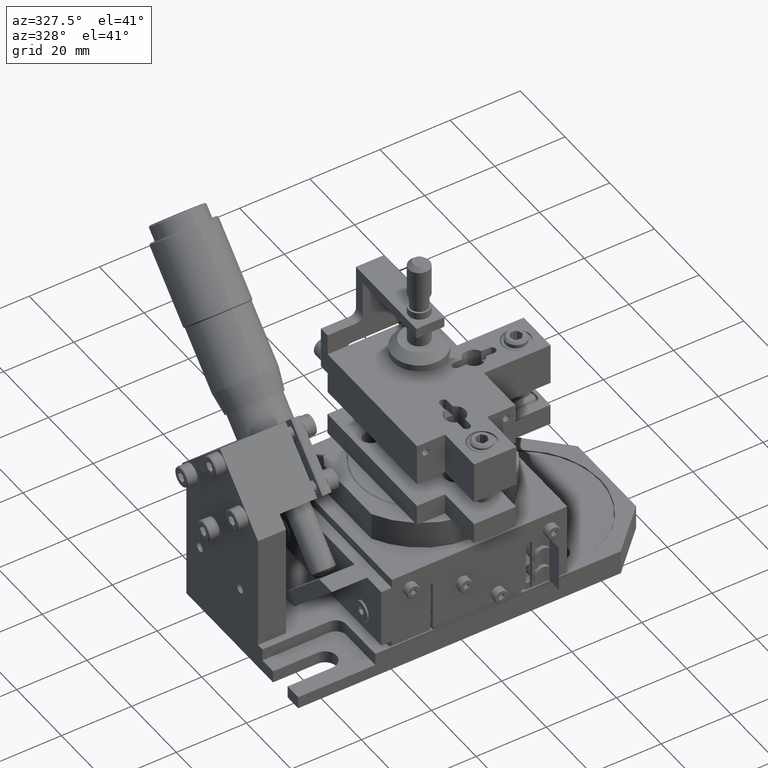
[diagram: clean part render]
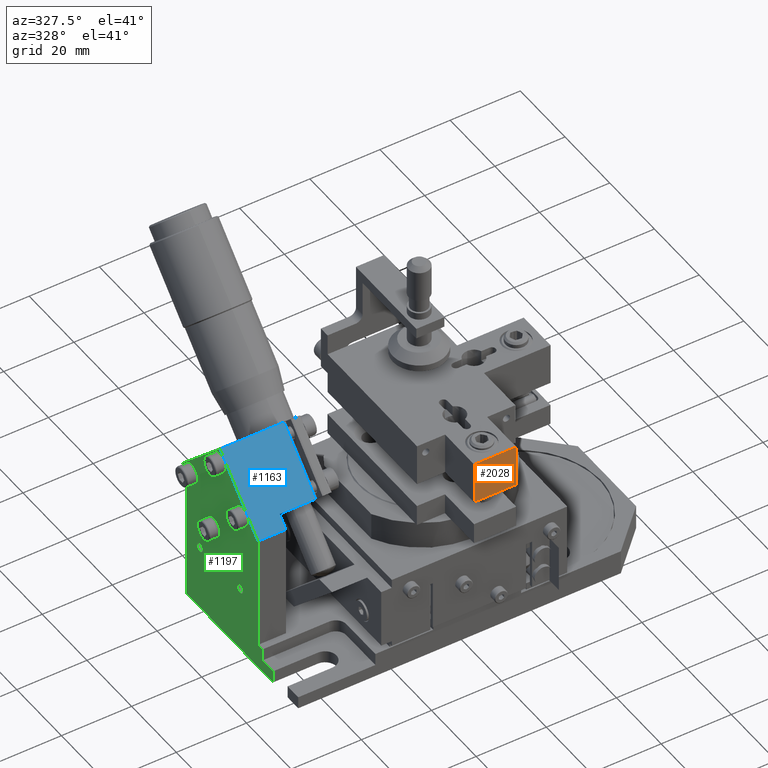
[diagram: same view with three faces highlighted in distinct colors, each labeled with its STEP entity id]
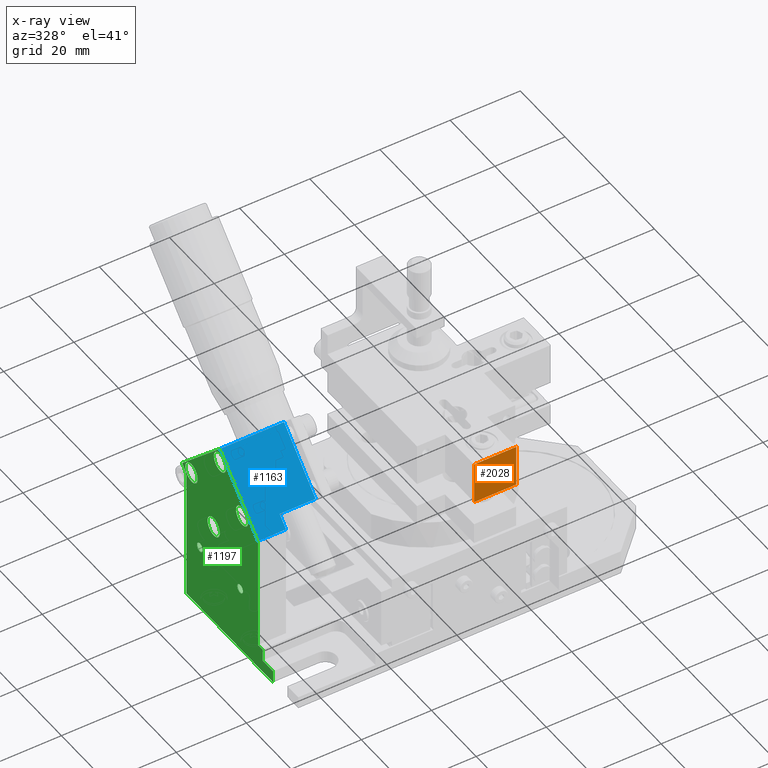
[diagram: x-ray of the same camera — body ghosted, the three highlighted faces saturated]
A machine part, auxiliary view with three faces highlighted in distinct colors.
The next image is the same camera in x-ray (body ghosted, the three faces saturated) — at least one of them is partly hidden behind the body in this view.
Their STEP definitions:

[orange] entity #2028 — the highlighted face is a freeform B-spline surface patch.
#2028=ADVANCED_FACE('',(#3232),#43042,.T.);
#3232=FACE_OUTER_BOUND('',#4586,.T.);
#4586=EDGE_LOOP('',(#10637,#10638,#10639,#10640));
#10637=ORIENTED_EDGE('',*,*,#37594,.T.);
#10638=ORIENTED_EDGE('',*,*,#37595,.T.);
#10639=ORIENTED_EDGE('',*,*,#37536,.F.);
#10640=ORIENTED_EDGE('',*,*,#37593,.F.);
#16912=PCURVE('',#43033,#23315);
#17037=PCURVE('',#43041,#23440);
#17040=PCURVE('',#43042,#23443);
#17041=PCURVE('',#43042,#23444);
#17042=PCURVE('',#43042,#23445);
#17043=PCURVE('',#43042,#23446);
#17047=PCURVE('',#43043,#23450);
#17110=PCURVE('',#43052,#23513);
#23315=DEFINITIONAL_REPRESENTATION('',(#30482),#93713);
#23440=DEFINITIONAL_REPRESENTATION('',(#30623),#93713);
#23443=DEFINITIONAL_REPRESENTATION('',(#30627),#93713);
#23444=DEFINITIONAL_REPRESENTATION('',(#30629),#93713);
#23445=DEFINITIONAL_REPRESENTATION('',(#30630),#93713);
#23446=DEFINITIONAL_REPRESENTATION('',(#30631),#93713);
#23450=DEFINITIONAL_REPRESENTATION('',(#30637),#93713);
#23513=DEFINITIONAL_REPRESENTATION('',(#30710),#93713);
#30481=B_SPLINE_CURVE_WITH_KNOTS('',1,(#90628,#90629),.UNSPECIFIED.,.F.,
 .F.,(2,2),(-12.0000000000004,0.),.UNSPECIFIED.);
#30482=B_SPLINE_CURVE_WITH_KNOTS('',1,(#90630,#90631),.UNSPECIFIED.,.F.,
 .F.,(2,2),(-12.0000000000004,0.),.UNSPECIFIED.);
#30622=B_SPLINE_CURVE_WITH_KNOTS('',1,(#91105,#91106),.UNSPECIFIED.,.F.,
 .F.,(2,2),(-12.,0.),.UNSPECIFIED.);
#30623=B_SPLINE_CURVE_WITH_KNOTS('',1,(#91107,#91108),.UNSPECIFIED.,.F.,
 .F.,(2,2),(-12.,0.),.UNSPECIFIED.);
#30626=B_SPLINE_CURVE_WITH_KNOTS('',1,(#91113,#91114),.UNSPECIFIED.,.F.,
 .F.,(2,2),(0.,12.0000000000004),.UNSPECIFIED.);
#30627=B_SPLINE_CURVE_WITH_KNOTS('',1,(#91115,#91116),.UNSPECIFIED.,.F.,
 .F.,(2,2),(0.,12.0000000000004),.UNSPECIFIED.);
#30628=B_SPLINE_CURVE_WITH_KNOTS('',1,(#91117,#91118),.UNSPECIFIED.,.F.,
 .F.,(2,2),(-12.0000000000001,0.),.UNSPECIFIED.);
#30629=B_SPLINE_CURVE_WITH_KNOTS('',1,(#91119,#91120),.UNSPECIFIED.,.F.,
 .F.,(2,2),(-12.0000000000001,0.),.UNSPECIFIED.);
#30630=B_SPLINE_CURVE_WITH_KNOTS('',1,(#91121,#91122),.UNSPECIFIED.,.F.,
 .F.,(2,2),(-12.0000000000004,0.),.UNSPECIFIED.);
#30631=B_SPLINE_CURVE_WITH_KNOTS('',1,(#91123,#91124),.UNSPECIFIED.,.F.,
 .F.,(2,2),(-12.,0.),.UNSPECIFIED.);
#30637=B_SPLINE_CURVE_WITH_KNOTS('',1,(#91135,#91136),.UNSPECIFIED.,.F.,
 .F.,(2,2),(-12.0000000000001,0.),.UNSPECIFIED.);
#30710=B_SPLINE_CURVE_WITH_KNOTS('',1,(#91298,#91299),.UNSPECIFIED.,.F.,
 .F.,(2,2),(0.,12.0000000000004),.UNSPECIFIED.);
#34196=SURFACE_CURVE('',#30481,(#16912,#17042),.PCURVE_S1.);
#34253=SURFACE_CURVE('',#30622,(#17037,#17043),.PCURVE_S1.);
#34254=SURFACE_CURVE('',#30626,(#17040,#17110),.PCURVE_S1.);
#34255=SURFACE_CURVE('',#30628,(#17041,#17047),.PCURVE_S1.);
#37536=EDGE_CURVE('',#42406,#42407,#34196,.T.);
#37593=EDGE_CURVE('',#42445,#42406,#34253,.T.);
#37594=EDGE_CURVE('',#42445,#42446,#34254,.T.);
#37595=EDGE_CURVE('',#42446,#42407,#34255,.T.);
#42406=VERTEX_POINT('',#87221);
#42407=VERTEX_POINT('',#87222);
#42445=VERTEX_POINT('',#87260);
#42446=VERTEX_POINT('',#87261);
#43033=B_SPLINE_SURFACE_WITH_KNOTS('',1,1,((#86317,#86318),(#86319,#86320)),
 .UNSPECIFIED.,.F.,.F.,.F.,(2,2),(2,2),(-29.6508674166048,34.202720252592),
(-24.4352821339673,32.2207320696255),.UNSPECIFIED.);
#43041=B_SPLINE_SURFACE_WITH_KNOTS('',1,1,((#86529,#86530),(#86531,#86532)),
 .UNSPECIFIED.,.F.,.F.,.F.,(2,2),(2,2),(-1.32000000000003,13.32),(-1.42002021941653,
14.4200202194166),.UNSPECIFIED.);
#43042=B_SPLINE_SURFACE_WITH_KNOTS('',1,1,((#86533,#86534),(#86535,#86536)),
 .UNSPECIFIED.,.F.,.F.,.F.,(2,2),(2,2),(-1.32000000000003,13.3200000000001),
(-1.32002021941656,13.320020219417),.UNSPECIFIED.);
#43043=B_SPLINE_SURFACE_WITH_KNOTS('',1,1,((#86537,#86538),(#86539,#86540)),
 .UNSPECIFIED.,.F.,.F.,.F.,(2,2),(2,2),(-13.3200000000001,1.32000000000001),
(-14.4200202194166,1.42002021941655),.UNSPECIFIED.);
#43052=B_SPLINE_SURFACE_WITH_KNOTS('',1,1,((#86573,#86574),(#86575,#86576)),
 .UNSPECIFIED.,.F.,.F.,.F.,(2,2),(2,2),(-24.4352821339673,32.2207320696255),
(-29.6508674166047,34.2027202525921),.UNSPECIFIED.);
#86317=CARTESIAN_POINT('',(201.540010300063,33.5984791032046,-58.4147428953869));
#86318=CARTESIAN_POINT('',(258.19602369927,33.5984791032047,-58.4051958280862));
#86319=CARTESIAN_POINT('',(201.550770225685,33.5984791032047,-122.26832965801));
#86320=CARTESIAN_POINT('',(258.206783624892,33.5984791032048,-122.258782590709));
#86529=CARTESIAN_POINT('',(214.377707647935,32.2784791032047,-102.418427445477));
#86530=CARTESIAN_POINT('',(214.380376842622,32.2784791032047,-118.258467659419));
#86531=CARTESIAN_POINT('',(214.377707647935,46.9184791032047,-102.418427445477));
#86532=CARTESIAN_POINT('',(214.380376842622,46.9184791032047,-118.258467659419));
#86533=CARTESIAN_POINT('',(213.060117355283,32.2784791032047,-116.838669895893));
#86534=CARTESIAN_POINT('',(227.700157586261,32.2784791032047,-116.836202912408));
#86535=CARTESIAN_POINT('',(213.060117355283,46.9184791032048,-116.838669895893));
#86536=CARTESIAN_POINT('',(227.700157586261,46.9184791032048,-116.836202912408));
#86537=CARTESIAN_POINT('',(226.377707477562,46.9184791032048,-102.416405333452));
#86538=CARTESIAN_POINT('',(226.380376672249,46.9184791032048,-118.256445547394));
#86539=CARTESIAN_POINT('',(226.377707477562,32.2784791032047,-102.416405333453));
#86540=CARTESIAN_POINT('',(226.380376672249,32.2784791032047,-118.256445547394));
#86573=CARTESIAN_POINT('',(201.540010300063,45.5984791032046,-58.4147428953869));
#86574=CARTESIAN_POINT('',(201.550770225685,45.5984791032047,-122.26832965801));
#86575=CARTESIAN_POINT('',(258.19602369927,45.5984791032047,-58.4051958280862));
#86576=CARTESIAN_POINT('',(258.206783624892,45.5984791032048,-122.258782590709));
#87221=CARTESIAN_POINT('',(214.380137555958,33.5984791032047,-116.838447460163));
#87222=CARTESIAN_POINT('',(226.380137385586,33.5984791032047,-116.836425348138));
#87260=CARTESIAN_POINT('',(214.380137555958,45.5984791032047,-116.838447460163));
#87261=CARTESIAN_POINT('',(226.380137385586,45.5984791032048,-116.836425348138));
#90628=CARTESIAN_POINT('',(214.380137555958,33.5984791032047,-116.838447460163));
#90629=CARTESIAN_POINT('',(226.380137385586,33.5984791032047,-116.836425348138));
#90630=CARTESIAN_POINT('',(28.7749999999997,-11.6050000000009));
#90631=CARTESIAN_POINT('',(28.7749999999996,0.394999999999518));
#91105=CARTESIAN_POINT('',(214.380137555958,45.5984791032047,-116.838447460163));
#91106=CARTESIAN_POINT('',(214.380137555958,33.5984791032047,-116.838447460163));
#91107=CARTESIAN_POINT('',(12.,13.0000000000001));
#91108=CARTESIAN_POINT('',(-2.77118230333977E-14,13.0000000000001));
#91113=CARTESIAN_POINT('',(214.380137555958,45.5984791032047,-116.838447460163));
#91114=CARTESIAN_POINT('',(226.380137385586,45.5984791032048,-116.836425348138));
#91115=CARTESIAN_POINT('',(12.,1.81044581121893E-14));
#91116=CARTESIAN_POINT('',(12.0000000000001,12.0000000000004));
#91117=CARTESIAN_POINT('',(226.380137385586,45.5984791032048,-116.836425348138));
#91118=CARTESIAN_POINT('',(226.380137385586,33.5984791032047,-116.836425348138));
#91119=CARTESIAN_POINT('',(12.0000000000001,12.0000000000004));
#91120=CARTESIAN_POINT('',(-1.80996687888224E-14,12.0000000000004));
#91121=CARTESIAN_POINT('',(0.,0.));
#91122=CARTESIAN_POINT('',(-1.80996687888224E-14,12.0000000000004));
#91123=CARTESIAN_POINT('',(12.,1.81044581121893E-14));
#91124=CARTESIAN_POINT('',(0.,0.));
#91135=CARTESIAN_POINT('',(-12.0000000000001,2.5580144338521E-14));
#91136=CARTESIAN_POINT('',(0.,0.));
#91298=CARTESIAN_POINT('',(-11.6050000000009,28.7749999999998));
#91299=CARTESIAN_POINT('',(0.394999999999518,28.7749999999997));
#93713=(
GEOMETRIC_REPRESENTATION_CONTEXT(2)
PARAMETRIC_REPRESENTATION_CONTEXT()
REPRESENTATION_CONTEXT('pspace','')
);

[blue] entity #1163 — the highlighted face is a freeform B-spline surface patch.
#1163=ADVANCED_FACE('',(#2367),#42693,.T.);
#2367=FACE_OUTER_BOUND('',#3625,.T.);
#3625=EDGE_LOOP('',(#6138,#6139,#6140,#6141,#6142,#6143));
#6138=ORIENTED_EDGE('',*,*,#35346,.T.);
#6139=ORIENTED_EDGE('',*,*,#35347,.T.);
#6140=ORIENTED_EDGE('',*,*,#35348,.T.);
#6141=ORIENTED_EDGE('',*,*,#35349,.T.);
#6142=ORIENTED_EDGE('',*,*,#35350,.T.);
#6143=ORIENTED_EDGE('',*,*,#35314,.F.);
#12494=PCURVE('',#42691,#18897);
#12541=PCURVE('',#42693,#18944);
#12542=PCURVE('',#42693,#18945);
#12543=PCURVE('',#42693,#18946);
#12544=PCURVE('',#42693,#18947);
#12545=PCURVE('',#42693,#18948);
#12546=PCURVE('',#42693,#18949);
#12548=PCURVE('',#43229,#18951);
#12564=PCURVE('',#42695,#18967);
#12736=PCURVE('',#42710,#19139);
#12748=PCURVE('',#42711,#19151);
#12787=PCURVE('',#42713,#19190);
#18897=DEFINITIONAL_REPRESENTATION('',(#25617),#93713);
#18944=DEFINITIONAL_REPRESENTATION('',(#25669),#93713);
#18945=DEFINITIONAL_REPRESENTATION('',(#25671),#93713);
#18946=DEFINITIONAL_REPRESENTATION('',(#25673),#93713);
#18947=DEFINITIONAL_REPRESENTATION('',(#25675),#93713);
#18948=DEFINITIONAL_REPRESENTATION('',(#25677),#93713);
#18949=DEFINITIONAL_REPRESENTATION('',(#25678),#93713);
#18951=DEFINITIONAL_REPRESENTATION('',(#25680),#93713);
#18967=DEFINITIONAL_REPRESENTATION('',(#25691),#93713);
#19139=DEFINITIONAL_REPRESENTATION('',(#25873),#93713);
#19151=DEFINITIONAL_REPRESENTATION('',(#25884),#93713);
#19190=DEFINITIONAL_REPRESENTATION('',(#25917),#93713);
#25616=B_SPLINE_CURVE_WITH_KNOTS('',1,(#57954,#57955),.UNSPECIFIED.,.F.,
 .F.,(2,2),(-10.2510004003201,0.),.UNSPECIFIED.);
#25617=B_SPLINE_CURVE_WITH_KNOTS('',1,(#57956,#57957),.UNSPECIFIED.,.F.,
 .F.,(2,2),(-10.2510004003201,0.),.UNSPECIFIED.);
#25668=B_SPLINE_CURVE_WITH_KNOTS('',1,(#58155,#58156),.UNSPECIFIED.,.F.,
 .F.,(2,2),(-20.,0.),.UNSPECIFIED.);
#25669=B_SPLINE_CURVE_WITH_KNOTS('',1,(#58157,#58158),.UNSPECIFIED.,.F.,
 .F.,(2,2),(-20.,0.),.UNSPECIFIED.);
#25670=B_SPLINE_CURVE_WITH_KNOTS('',1,(#58159,#58160),.UNSPECIFIED.,.F.,
 .F.,(2,2),(0.,18.2510004003206),.UNSPECIFIED.);
#25671=B_SPLINE_CURVE_WITH_KNOTS('',1,(#58161,#58162),.UNSPECIFIED.,.F.,
 .F.,(2,2),(0.,18.2510004003206),.UNSPECIFIED.);
#25672=B_SPLINE_CURVE_WITH_KNOTS('',1,(#58163,#58164),.UNSPECIFIED.,.F.,
 .F.,(2,2),(0.,24.),.UNSPECIFIED.);
#25673=B_SPLINE_CURVE_WITH_KNOTS('',1,(#58165,#58166),.UNSPECIFIED.,.F.,
 .F.,(2,2),(0.,24.),.UNSPECIFIED.);
#25674=B_SPLINE_CURVE_WITH_KNOTS('',1,(#58167,#58168),.UNSPECIFIED.,.F.,
 .F.,(2,2),(-7.99999999999955,0.),.UNSPECIFIED.);
#25675=B_SPLINE_CURVE_WITH_KNOTS('',1,(#58169,#58170),.UNSPECIFIED.,.F.,
 .F.,(2,2),(-7.99999999999955,0.),.UNSPECIFIED.);
#25676=B_SPLINE_CURVE_WITH_KNOTS('',1,(#58171,#58172),.UNSPECIFIED.,.F.,
 .F.,(2,2),(-3.99999999999975,0.),.UNSPECIFIED.);
#25677=B_SPLINE_CURVE_WITH_KNOTS('',1,(#58173,#58174),.UNSPECIFIED.,.F.,
 .F.,(2,2),(-3.99999999999975,0.),.UNSPECIFIED.);
#25678=B_SPLINE_CURVE_WITH_KNOTS('',1,(#58175,#58176),.UNSPECIFIED.,.F.,
 .F.,(2,2),(-10.2510004003201,0.),.UNSPECIFIED.);
#25680=B_SPLINE_CURVE_WITH_KNOTS('',1,(#58182,#58183),.UNSPECIFIED.,.F.,
 .F.,(2,2),(-20.,0.),.UNSPECIFIED.);
#25691=B_SPLINE_CURVE_WITH_KNOTS('',1,(#58236,#58237),.UNSPECIFIED.,.F.,
 .F.,(2,2),(0.,18.2510004003206),.UNSPECIFIED.);
#25873=B_SPLINE_CURVE_WITH_KNOTS('',1,(#58956,#58957),.UNSPECIFIED.,.F.,
 .F.,(2,2),(-3.99999999999975,0.),.UNSPECIFIED.);
#25884=B_SPLINE_CURVE_WITH_KNOTS('',1,(#59024,#59025),.UNSPECIFIED.,.F.,
 .F.,(2,2),(0.,24.),.UNSPECIFIED.);
#25917=B_SPLINE_CURVE_WITH_KNOTS('',1,(#59202,#59203),.UNSPECIFIED.,.F.,
 .F.,(2,2),(-7.99999999999955,0.),.UNSPECIFIED.);
#31974=SURFACE_CURVE('',#25616,(#12494,#12546),.PCURVE_S1.);
#32006=SURFACE_CURVE('',#25668,(#12541,#12548),.PCURVE_S1.);
#32007=SURFACE_CURVE('',#25670,(#12542,#12564),.PCURVE_S1.);
#32008=SURFACE_CURVE('',#25672,(#12543,#12748),.PCURVE_S1.);
#32009=SURFACE_CURVE('',#25674,(#12544,#12787),.PCURVE_S1.);
#32010=SURFACE_CURVE('',#25676,(#12545,#12736),.PCURVE_S1.);
#35314=EDGE_CURVE('',#40910,#40912,#31974,.T.);
#35346=EDGE_CURVE('',#40910,#40934,#32006,.T.);
#35347=EDGE_CURVE('',#40934,#40935,#32007,.T.);
#35348=EDGE_CURVE('',#40935,#40936,#32008,.T.);
#35349=EDGE_CURVE('',#40936,#40937,#32009,.T.);
#35350=EDGE_CURVE('',#40937,#40912,#32010,.T.);
#40910=VERTEX_POINT('',#51025);
#40912=VERTEX_POINT('',#51027);
#40934=VERTEX_POINT('',#51049);
#40935=VERTEX_POINT('',#51050);
#40936=VERTEX_POINT('',#51051);
#40937=VERTEX_POINT('',#51052);
#42691=B_SPLINE_SURFACE_WITH_KNOTS('',1,1,((#46999,#47000),(#47001,#47002)),
 .UNSPECIFIED.,.F.,.F.,.F.,(2,2),(2,2),(-11.1531462026927,10.9478039677075),
(-14.5733637583008,14.5794629077103),.UNSPECIFIED.);
#42693=B_SPLINE_SURFACE_WITH_KNOTS('',1,1,((#47079,#47080),(#47081,#47082)),
 .UNSPECIFIED.,.F.,.F.,.F.,(2,2),(2,2),(-22.580104658412,6.58010376639496),
(-28.3585915729964,-6.19229695894951),.UNSPECIFIED.);
#42695=B_SPLINE_SURFACE_WITH_KNOTS('',1,1,((#47105,#47106),(#47107,#47108)),
 .UNSPECIFIED.,.F.,.F.,.F.,(2,2),(2,2),(-14.577545631778,14.5801291415425),
(-19.2086752361343,3.55862333555802),.UNSPECIFIED.);
#42710=B_SPLINE_SURFACE_WITH_KNOTS('',1,1,((#47435,#47436),(#47437,#47438)),
 .UNSPECIFIED.,.F.,.F.,.F.,(2,2),(2,2),(-17.3871675346341,25.8822697168885),
(-19.8300087184064,19.8645670970547),.UNSPECIFIED.);
#42711=B_SPLINE_SURFACE_WITH_KNOTS('',1,1,((#47439,#47440),(#47441,#47442)),
 .UNSPECIFIED.,.F.,.F.,.F.,(2,2),(2,2),(-27.3612533024574,21.70825752162),
(-33.6435167207386,34.9964832792622),.UNSPECIFIED.);
#42713=B_SPLINE_SURFACE_WITH_KNOTS('',1,1,((#47465,#47466),(#47467,#47468)),
 .UNSPECIFIED.,.F.,.F.,.F.,(2,2),(2,2),(-0.920080113866289,8.9200801138658),
(-3.42294372515229,36.4523809766752),.UNSPECIFIED.);
#43229=(
BOUNDED_SURFACE()
B_SPLINE_SURFACE(2,1,((#47083,#47084),(#47085,#47086),(#47087,#47088),(#47089,
#47090),(#47091,#47092),(#47093,#47094),(#47095,#47096),(#47097,#47098),
(#47099,#47100)),.UNSPECIFIED.,.T.,.F.,.F.)
B_SPLINE_SURFACE_WITH_KNOTS((3,2,2,2,3),(2,2),(0.,1.5707963267949,3.14159265358979,
4.71238898038469,6.28318530717959),(0.,24.3998784176723),.UNSPECIFIED.)
GEOMETRIC_REPRESENTATION_ITEM()
RATIONAL_B_SPLINE_SURFACE(((1.,1.),(0.707106781186548,0.707106781186548),
(1.,1.),(0.707106781186548,0.707106781186548),(1.,1.),(0.707106781186548,
0.707106781186548),(1.,1.),(0.707106781186548,0.707106781186548),(1.,1.)))
REPRESENTATION_ITEM('')
SURFACE()
);
#46999=CARTESIAN_POINT('',(175.381404767817,72.0462633844215,-69.1758223634623));
#47000=CARTESIAN_POINT('',(175.395171699631,51.4321019581292,-89.7899791927104));
#47001=CARTESIAN_POINT('',(197.482350009613,72.0462633844215,-69.1610624967994));
#47002=CARTESIAN_POINT('',(197.496116941427,51.4321019581292,-89.7752193260475));
#47079=CARTESIAN_POINT('',(167.377846932173,37.2895125481251,-72.0048286674222));
#47080=CARTESIAN_POINT('',(189.544136603043,37.2895125481251,-71.9900251612203));
#47081=CARTESIAN_POINT('',(167.391617349898,57.9088936661193,-92.6242051872077));
#47082=CARTESIAN_POINT('',(189.557907020768,57.9088936661193,-92.6094016810058));
#47083=CARTESIAN_POINT('',(187.598664124215,56.2258630882857,-88.0992515882797));
#47084=CARTESIAN_POINT('',(187.58714169223,38.972543599022,-70.8459359465792));
#47085=CARTESIAN_POINT('',(186.598664235718,56.2261970076013,-88.0995855075207));
#47086=CARTESIAN_POINT('',(186.587141803732,38.9728775183371,-70.8462698658207));
#47087=CARTESIAN_POINT('',(186.598664235717,55.5190903052586,-88.8066923675512));
#47088=CARTESIAN_POINT('',(186.587141803733,38.2657708159946,-71.5533767258511));
#47089=CARTESIAN_POINT('',(186.598664235717,54.811983602916,-89.5137992275816));
#47090=CARTESIAN_POINT('',(186.587141803733,37.5586641136521,-72.2604835858814));
#47091=CARTESIAN_POINT('',(187.598664124215,54.8116496836004,-89.5134653083406));
#47092=CARTESIAN_POINT('',(187.587141692231,37.558330194337,-72.2601496666399));
#47093=CARTESIAN_POINT('',(188.598664012713,54.8113157642848,-89.5131313890995));
#47094=CARTESIAN_POINT('',(188.587141580729,37.5579962750218,-72.2598157473984));
#47095=CARTESIAN_POINT('',(188.598664012713,55.5184224666275,-88.806024529069));
#47096=CARTESIAN_POINT('',(188.587141580728,38.2651029773644,-71.552708887368));
#47097=CARTESIAN_POINT('',(188.598664012713,56.2255291689701,-88.0989176690386));
#47098=CARTESIAN_POINT('',(188.587141580728,38.9722096797069,-70.8456020273377));
#47099=CARTESIAN_POINT('',(187.598664124215,56.2258630882857,-88.0992515882797));
#47100=CARTESIAN_POINT('',(187.58714169223,38.972543599022,-70.8459359465792));
#47105=CARTESIAN_POINT('',(167.31643089253,57.9070847917843,-55.0361126559356));
#47106=CARTESIAN_POINT('',(190.083724387019,57.9070847917843,-55.0209077761181));
#47107=CARTESIAN_POINT('',(167.330200113781,37.2894952359376,-75.6536976139736));
#47108=CARTESIAN_POINT('',(190.09749360827,37.2894952359376,-75.6384927341561));
#47435=CARTESIAN_POINT('',(177.351264250627,49.5502712343634,-94.2010933127768));
#47436=CARTESIAN_POINT('',(177.324754682407,49.5502712343634,-54.5065263493726));
#47437=CARTESIAN_POINT('',(177.351264250627,92.819708485886,-94.2010933127767));
#47438=CARTESIAN_POINT('',(177.324754682407,92.819708485886,-54.5065263493725));
#47439=CARTESIAN_POINT('',(169.356295690174,33.2939220482589,-101.737678925782));
#47440=CARTESIAN_POINT('',(169.356295690174,101.93392204826,-101.737678925782));
#47441=CARTESIAN_POINT('',(169.323525178889,33.2939220482588,-52.6681790444114));
#47442=CARTESIAN_POINT('',(169.323525178889,101.93392204826,-52.6681790444113));
#47465=CARTESIAN_POINT('',(178.269068200186,52.6615410715839,-90.7925315282778));
#47466=CARTESIAN_POINT('',(178.269068200186,92.5368657734114,-90.7925315282778));
#47467=CARTESIAN_POINT('',(168.42891016685,52.6615410715839,-90.7991031666818));
#47468=CARTESIAN_POINT('',(168.42891016685,92.5368657734114,-90.7991031666817));
#51025=CARTESIAN_POINT('',(187.598097473117,53.2560576719903,-87.9578734859462));
#51027=CARTESIAN_POINT('',(177.347099358813,53.2560576719903,-87.9647194992581));
#51049=CARTESIAN_POINT('',(187.588652809674,39.1139220482593,-73.8157410159709));
#51050=CARTESIAN_POINT('',(169.337656479403,39.1139220482591,-73.8279297377361));
#51051=CARTESIAN_POINT('',(169.348990075535,56.0844847967362,-90.7984887017064));
#51052=CARTESIAN_POINT('',(177.348988291501,56.0844847967362,-90.793145993253));
#57954=CARTESIAN_POINT('',(187.598097473117,53.2560576719903,-87.9578734859462));
#57955=CARTESIAN_POINT('',(177.347099358813,53.2560576719903,-87.9647194992581));
#57956=CARTESIAN_POINT('',(1.05100040032053,12.));
#57957=CARTESIAN_POINT('',(-9.19999999999957,12.));
#58155=CARTESIAN_POINT('',(187.598097473117,53.2560576719903,-87.9578734859462));
#58156=CARTESIAN_POINT('',(187.588652809674,39.1139220482593,-73.8157410159709));
#58157=CARTESIAN_POINT('',(7.21644966006352E-14,-8.14899959967907));
#58158=CARTESIAN_POINT('',(-20.,-8.14899959967882));
#58159=CARTESIAN_POINT('',(187.588652809674,39.1139220482593,-73.8157410159709));
#58160=CARTESIAN_POINT('',(169.337656479403,39.1139220482591,-73.8279297377361));
#58161=CARTESIAN_POINT('',(-20.,-8.14899959967882));
#58162=CARTESIAN_POINT('',(-20.0000000000002,-26.3999999999994));
#58163=CARTESIAN_POINT('',(169.337656479403,39.1139220482591,-73.8279297377361));
#58164=CARTESIAN_POINT('',(169.348990075535,56.0844847967362,-90.7984887017064));
#58165=CARTESIAN_POINT('',(-20.0000000000002,-26.3999999999994));
#58166=CARTESIAN_POINT('',(3.99999999999979,-26.3999999999993));
#58167=CARTESIAN_POINT('',(169.348990075535,56.0844847967362,-90.7984887017064));
#58168=CARTESIAN_POINT('',(177.348988291501,56.0844847967362,-90.793145993253));
#58169=CARTESIAN_POINT('',(3.99999999999979,-26.3999999999993));
#58170=CARTESIAN_POINT('',(3.9999999999998,-18.3999999999998));
#58171=CARTESIAN_POINT('',(177.348988291501,56.0844847967362,-90.793145993253));
#58172=CARTESIAN_POINT('',(177.347099358813,53.2560576719903,-87.9647194992581));
#58173=CARTESIAN_POINT('',(3.9999999999998,-18.3999999999998));
#58174=CARTESIAN_POINT('',(5.17676179700999E-14,-18.3999999999991));
#58175=CARTESIAN_POINT('',(7.21644966006352E-14,-8.14899959967907));
#58176=CARTESIAN_POINT('',(5.17676179700999E-14,-18.3999999999991));
#58182=CARTESIAN_POINT('',(3.14211712155965,2.19993920883605));
#58183=CARTESIAN_POINT('',(3.14211712155956,22.1999392088361));
#58236=CARTESIAN_POINT('',(12.,1.05100040032052));
#58237=CARTESIAN_POINT('',(12.0000000000001,-17.2000000000001));
#58956=CARTESIAN_POINT('',(-10.8529539722613,-16.422060638896));
#58957=CARTESIAN_POINT('',(-13.6813810970072,-13.5936335141498));
#59024=CARTESIAN_POINT('',(0.548502109581116,-27.8235167207385));
#59025=CARTESIAN_POINT('',(-16.422060638896,-10.8529539722613));
#59202=CARTESIAN_POINT('',(7.99999999999958,9.32747461335121E-15));
#59203=CARTESIAN_POINT('',(0.,0.));
#93713=(
GEOMETRIC_REPRESENTATION_CONTEXT(2)
PARAMETRIC_REPRESENTATION_CONTEXT()
REPRESENTATION_CONTEXT('pspace','')
);

[green] entity #1197 — the highlighted face is a freeform B-spline surface patch.
#803=FACE_BOUND('',#3668,.T.);
#804=FACE_BOUND('',#3669,.T.);
#805=FACE_BOUND('',#3670,.T.);
#806=FACE_BOUND('',#3671,.T.);
#807=FACE_BOUND('',#3672,.T.);
#808=FACE_BOUND('',#3673,.T.);
#1197=ADVANCED_FACE('',(#2401,#803,#804,#805,#806,#807,#808),#42711,.T.);
#2401=FACE_OUTER_BOUND('',#3667,.T.);
#3667=EDGE_LOOP('',(#6344,#6345,#6346,#6347,#6348,#6349,#6350,#6351,#6352,
#6353,#6354));
#3668=EDGE_LOOP('',(#6355,#6356,#6357));
#3669=EDGE_LOOP('',(#6358,#6359,#6360));
#3670=EDGE_LOOP('',(#6361,#6362,#6363));
#3671=EDGE_LOOP('',(#6364,#6365,#6366));
#3672=EDGE_LOOP('',(#6367,#6368));
#3673=EDGE_LOOP('',(#6369,#6370));
#6344=ORIENTED_EDGE('',*,*,#35425,.T.);
#6345=ORIENTED_EDGE('',*,*,#35348,.F.);
#6346=ORIENTED_EDGE('',*,*,#35356,.F.);
#6347=ORIENTED_EDGE('',*,*,#35299,.F.);
#6348=ORIENTED_EDGE('',*,*,#35426,.T.);
#6349=ORIENTED_EDGE('',*,*,#35427,.T.);
#6350=ORIENTED_EDGE('',*,*,#35428,.T.);
#6351=ORIENTED_EDGE('',*,*,#35429,.T.);
#6352=ORIENTED_EDGE('',*,*,#35430,.T.);
#6353=ORIENTED_EDGE('',*,*,#35431,.T.);
#6354=ORIENTED_EDGE('',*,*,#35432,.T.);
#6355=ORIENTED_EDGE('',*,*,#34609,.F.);
#6356=ORIENTED_EDGE('',*,*,#34608,.F.);
#6357=ORIENTED_EDGE('',*,*,#34613,.F.);
#6358=ORIENTED_EDGE('',*,*,#35433,.T.);
#6359=ORIENTED_EDGE('',*,*,#35434,.T.);
#6360=ORIENTED_EDGE('',*,*,#35435,.T.);
#6361=ORIENTED_EDGE('',*,*,#34618,.F.);
#6362=ORIENTED_EDGE('',*,*,#34617,.F.);
#6363=ORIENTED_EDGE('',*,*,#34622,.F.);
#6364=ORIENTED_EDGE('',*,*,#35436,.T.);
#6365=ORIENTED_EDGE('',*,*,#35437,.T.);
#6366=ORIENTED_EDGE('',*,*,#35438,.T.);
#6367=ORIENTED_EDGE('',*,*,#35439,.T.);
#6368=ORIENTED_EDGE('',*,*,#35440,.T.);
#6369=ORIENTED_EDGE('',*,*,#35441,.T.);
#6370=ORIENTED_EDGE('',*,*,#35442,.T.);
#11354=PCURVE('',#43115,#17757);
#11355=PCURVE('',#43115,#17758);
#11359=PCURVE('',#43116,#17762);
#11365=PCURVE('',#43117,#17768);
#11366=PCURVE('',#43117,#17769);
#11370=PCURVE('',#43118,#17773);
#12476=PCURVE('',#42689,#18879);
#12543=PCURVE('',#42693,#18946);
#12563=PCURVE('',#42695,#18966);
#12747=PCURVE('',#42711,#19150);
#12748=PCURVE('',#42711,#19151);
#12749=PCURVE('',#42711,#19152);
#12750=PCURVE('',#42711,#19153);
#12751=PCURVE('',#42711,#19154);
#12752=PCURVE('',#42711,#19155);
#12753=PCURVE('',#42711,#19156);
#12754=PCURVE('',#42711,#19157);
#12755=PCURVE('',#42711,#19158);
#12756=PCURVE('',#42711,#19159);
#12757=PCURVE('',#42711,#19160);
#12758=PCURVE('',#42711,#19161);
#12759=PCURVE('',#42711,#19162);
#12760=PCURVE('',#42711,#19163);
#12761=PCURVE('',#42711,#19164);
#12762=PCURVE('',#42711,#19165);
#12763=PCURVE('',#42711,#19166);
#12764=PCURVE('',#42711,#19167);
#12765=PCURVE('',#42711,#19168);
#12766=PCURVE('',#42711,#19169);
#12767=PCURVE('',#42711,#19170);
#12768=PCURVE('',#42711,#19171);
#12769=PCURVE('',#42711,#19172);
#12770=PCURVE('',#42711,#19173);
#12771=PCURVE('',#42711,#19174);
#12772=PCURVE('',#42711,#19175);
#12773=PCURVE('',#42711,#19176);
#12777=PCURVE('',#43245,#19180);
#12778=PCURVE('',#42712,#19181);
#12784=PCURVE('',#42713,#19187);
#12788=PCURVE('',#43246,#19191);
#12792=PCURVE('',#43247,#19195);
#12817=PCURVE('',#42715,#19220);
#12859=PCURVE('',#42720,#19262);
#13011=PCURVE('',#42721,#19414);
#13042=PCURVE('',#42724,#19445);
#13061=PCURVE('',#42726,#19464);
#13735=PCURVE('',#43342,#20138);
#13736=PCURVE('',#43342,#20139);
#13740=PCURVE('',#43343,#20143);
#13758=PCURVE('',#43346,#20161);
#13759=PCURVE('',#43346,#20162);
#13763=PCURVE('',#43347,#20166);
#14207=PCURVE('',#43383,#20610);
#14213=PCURVE('',#43384,#20616);
#17757=DEFINITIONAL_REPRESENTATION('',(#24208),#93713);
#17758=DEFINITIONAL_REPRESENTATION('',(#24209),#93713);
#17762=DEFINITIONAL_REPRESENTATION('',(#24214),#93713);
#17768=DEFINITIONAL_REPRESENTATION('',(#24221),#93713);
#17769=DEFINITIONAL_REPRESENTATION('',(#24222),#93713);
#17773=DEFINITIONAL_REPRESENTATION('',(#24227),#93713);
#18879=DEFINITIONAL_REPRESENTATION('',(#25590),#93713);
#18946=DEFINITIONAL_REPRESENTATION('',(#25673),#93713);
#18966=DEFINITIONAL_REPRESENTATION('',(#25690),#93713);
#19150=DEFINITIONAL_REPRESENTATION('',(#25883),#93713);
#19151=DEFINITIONAL_REPRESENTATION('',(#25884),#93713);
#19152=DEFINITIONAL_REPRESENTATION('',(#25885),#93713);
#19153=DEFINITIONAL_REPRESENTATION('',(#25886),#93713);
#19154=DEFINITIONAL_REPRESENTATION('',(#38437),#93713);
#19155=DEFINITIONAL_REPRESENTATION('',(#25888),#93713);
#19156=DEFINITIONAL_REPRESENTATION('',(#25890),#93713);
#19157=DEFINITIONAL_REPRESENTATION('',(#25892),#93713);
#19158=DEFINITIONAL_REPRESENTATION('',(#25894),#93713);
#19159=DEFINITIONAL_REPRESENTATION('',(#25896),#93713);
#19160=DEFINITIONAL_REPRESENTATION('',(#25898),#93713);
#19161=DEFINITIONAL_REPRESENTATION('',(#38438),#93713);
#19162=DEFINITIONAL_REPRESENTATION('',(#38439),#93713);
#19163=DEFINITIONAL_REPRESENTATION('',(#38440),#93713);
#19164=DEFINITIONAL_REPRESENTATION('',(#38442),#93713);
#19165=DEFINITIONAL_REPRESENTATION('',(#38444),#93713);
#19166=DEFINITIONAL_REPRESENTATION('',(#38446),#93713);
#19167=DEFINITIONAL_REPRESENTATION('',(#38447),#93713);
#19168=DEFINITIONAL_REPRESENTATION('',(#38448),#93713);
#19169=DEFINITIONAL_REPRESENTATION('',(#38449),#93713);
#19170=DEFINITIONAL_REPRESENTATION('',(#38451),#93713);
#19171=DEFINITIONAL_REPRESENTATION('',(#38453),#93713);
#19172=DEFINITIONAL_REPRESENTATION('',(#38455),#93713);
#19173=DEFINITIONAL_REPRESENTATION('',(#38457),#93713);
#19174=DEFINITIONAL_REPRESENTATION('',(#38459),#93713);
#19175=DEFINITIONAL_REPRESENTATION('',(#38461),#93713);
#19176=DEFINITIONAL_REPRESENTATION('',(#38463),#93713);
#19180=DEFINITIONAL_REPRESENTATION('',(#25903),#93713);
#19181=DEFINITIONAL_REPRESENTATION('',(#25904),#93713);
#19187=DEFINITIONAL_REPRESENTATION('',(#25913),#93713);
#19191=DEFINITIONAL_REPRESENTATION('',(#25918),#93713);
#19195=DEFINITIONAL_REPRESENTATION('',(#25924),#93713);
#19220=DEFINITIONAL_REPRESENTATION('',(#25962),#93713);
#19262=DEFINITIONAL_REPRESENTATION('',(#25993),#93713);
#19414=DEFINITIONAL_REPRESENTATION('',(#26174),#93713);
#19445=DEFINITIONAL_REPRESENTATION('',(#26210),#93713);
#19464=DEFINITIONAL_REPRESENTATION('',(#26230),#93713);
#20138=DEFINITIONAL_REPRESENTATION('',(#26883),#93713);
#20139=DEFINITIONAL_REPRESENTATION('',(#26884),#93713);
#20143=DEFINITIONAL_REPRESENTATION('',(#26889),#93713);
#20161=DEFINITIONAL_REPRESENTATION('',(#26908),#93713);
#20162=DEFINITIONAL_REPRESENTATION('',(#26909),#93713);
#20166=DEFINITIONAL_REPRESENTATION('',(#26914),#93713);
#20610=DEFINITIONAL_REPRESENTATION('',(#27439),#93713);
#20616=DEFINITIONAL_REPRESENTATION('',(#27446),#93713);
#24208=B_SPLINE_CURVE_WITH_KNOTS('',1,(#52395,#52396),.UNSPECIFIED.,.F.,
 .F.,(2,2),(-4.31968989868596,0.),.UNSPECIFIED.);
#24209=B_SPLINE_CURVE_WITH_KNOTS('',1,(#52402,#52403),.UNSPECIFIED.,.F.,
 .F.,(2,2),(-8.63937979737193,0.),.UNSPECIFIED.);
#24214=B_SPLINE_CURVE_WITH_KNOTS('',1,(#52421,#52422),.UNSPECIFIED.,.F.,
 .F.,(2,2),(-8.63937979737193,-4.31968989868596),.UNSPECIFIED.);
#24221=B_SPLINE_CURVE_WITH_KNOTS('',1,(#52444,#52445),.UNSPECIFIED.,.F.,
 .F.,(2,2),(-4.31968989868596,0.),.UNSPECIFIED.);
#24222=B_SPLINE_CURVE_WITH_KNOTS('',1,(#52451,#52452),.UNSPECIFIED.,.F.,
 .F.,(2,2),(-8.63937979737193,0.),.UNSPECIFIED.);
#24227=B_SPLINE_CURVE_WITH_KNOTS('',1,(#52470,#52471),.UNSPECIFIED.,.F.,
 .F.,(2,2),(-8.63937979737193,-4.31968989868596),.UNSPECIFIED.);
#25589=B_SPLINE_CURVE_WITH_KNOTS('',1,(#57882,#57883),.UNSPECIFIED.,.F.,
 .F.,(2,2),(0.,1.50252531694169),.UNSPECIFIED.);
#25590=B_SPLINE_CURVE_WITH_KNOTS('',1,(#57884,#57885),.UNSPECIFIED.,.F.,
 .F.,(2,2),(0.,1.50252531694169),.UNSPECIFIED.);
#25672=B_SPLINE_CURVE_WITH_KNOTS('',1,(#58163,#58164),.UNSPECIFIED.,.F.,
 .F.,(2,2),(0.,24.),.UNSPECIFIED.);
#25673=B_SPLINE_CURVE_WITH_KNOTS('',1,(#58165,#58166),.UNSPECIFIED.,.F.,
 .F.,(2,2),(0.,24.),.UNSPECIFIED.);
#25689=B_SPLINE_CURVE_WITH_KNOTS('',1,(#58232,#58233),.UNSPECIFIED.,.F.,
 .F.,(2,2),(0.,24.),.UNSPECIFIED.);
#25690=B_SPLINE_CURVE_WITH_KNOTS('',1,(#58234,#58235),.UNSPECIFIED.,.F.,
 .F.,(2,2),(0.,24.),.UNSPECIFIED.);
#25882=B_SPLINE_CURVE_WITH_KNOTS('',1,(#59020,#59021),.UNSPECIFIED.,.F.,
 .F.,(2,2),(-33.0294372515228,0.),.UNSPECIFIED.);
#25883=B_SPLINE_CURVE_WITH_KNOTS('',1,(#59022,#59023),.UNSPECIFIED.,.F.,
 .F.,(2,2),(-33.0294372515228,0.),.UNSPECIFIED.);
#25884=B_SPLINE_CURVE_WITH_KNOTS('',1,(#59024,#59025),.UNSPECIFIED.,.F.,
 .F.,(2,2),(0.,24.),.UNSPECIFIED.);
#25885=B_SPLINE_CURVE_WITH_KNOTS('',1,(#59026,#59027),.UNSPECIFIED.,.F.,
 .F.,(2,2),(0.,24.),.UNSPECIFIED.);
#25886=B_SPLINE_CURVE_WITH_KNOTS('',1,(#59028,#59029),.UNSPECIFIED.,.F.,
 .F.,(2,2),(0.,1.50252531694169),.UNSPECIFIED.);
#25887=B_SPLINE_CURVE_WITH_KNOTS('',1,(#59036,#59037),.UNSPECIFIED.,.F.,
 .F.,(2,2),(-36.8456710674498,0.),.UNSPECIFIED.);
#25888=B_SPLINE_CURVE_WITH_KNOTS('',1,(#59038,#59039),.UNSPECIFIED.,.F.,
 .F.,(2,2),(-36.8456710674498,0.),.UNSPECIFIED.);
#25889=B_SPLINE_CURVE_WITH_KNOTS('',1,(#59040,#59041),.UNSPECIFIED.,.F.,
 .F.,(2,2),(0.,38.75),.UNSPECIFIED.);
#25890=B_SPLINE_CURVE_WITH_KNOTS('',1,(#59042,#59043),.UNSPECIFIED.,.F.,
 .F.,(2,2),(0.,38.75),.UNSPECIFIED.);
#25891=B_SPLINE_CURVE_WITH_KNOTS('',1,(#59044,#59045),.UNSPECIFIED.,.F.,
 .F.,(2,2),(0.,3.5000000000001),.UNSPECIFIED.);
#25892=B_SPLINE_CURVE_WITH_KNOTS('',1,(#59046,#59047),.UNSPECIFIED.,.F.,
 .F.,(2,2),(0.,3.5000000000001),.UNSPECIFIED.);
#25893=B_SPLINE_CURVE_WITH_KNOTS('',1,(#59048,#59049),.UNSPECIFIED.,.F.,
 .F.,(2,2),(-4.74999999999992,0.),.UNSPECIFIED.);
#25894=B_SPLINE_CURVE_WITH_KNOTS('',1,(#59050,#59051),.UNSPECIFIED.,.F.,
 .F.,(2,2),(-4.74999999999992,0.),.UNSPECIFIED.);
#25895=B_SPLINE_CURVE_WITH_KNOTS('',1,(#59052,#59053),.UNSPECIFIED.,.F.,
 .F.,(2,2),(-3.4999999999999,0.),.UNSPECIFIED.);
#25896=B_SPLINE_CURVE_WITH_KNOTS('',1,(#59054,#59055),.UNSPECIFIED.,.F.,
 .F.,(2,2),(-3.4999999999999,0.),.UNSPECIFIED.);
#25897=B_SPLINE_CURVE_WITH_KNOTS('',1,(#59056,#59057),.UNSPECIFIED.,.F.,
 .F.,(2,2),(-1.99999999999979,0.),.UNSPECIFIED.);
#25898=B_SPLINE_CURVE_WITH_KNOTS('',1,(#59058,#59059),.UNSPECIFIED.,.F.,
 .F.,(2,2),(-1.99999999999979,0.),.UNSPECIFIED.);
#25903=B_SPLINE_CURVE_WITH_KNOTS('',1,(#59174,#59175),.UNSPECIFIED.,.F.,
 .F.,(2,2),(-2.35619449019232,0.),.UNSPECIFIED.);
#25904=B_SPLINE_CURVE_WITH_KNOTS('',1,(#59176,#59177),.UNSPECIFIED.,.F.,
 .F.,(2,2),(-36.8456710674498,0.),.UNSPECIFIED.);
#25913=B_SPLINE_CURVE_WITH_KNOTS('',1,(#59194,#59195),.UNSPECIFIED.,.F.,
 .F.,(2,2),(-33.0294372515228,0.),.UNSPECIFIED.);
#25918=B_SPLINE_CURVE_WITH_KNOTS('',1,(#59204,#59205),.UNSPECIFIED.,.F.,
 .F.,(2,2),(0.,3.92699081698724),.UNSPECIFIED.);
#25924=B_SPLINE_CURVE_WITH_KNOTS('',1,(#59216,#59217),.UNSPECIFIED.,.F.,
 .F.,(2,2),(0.,3.92699081698724),.UNSPECIFIED.);
#25962=B_SPLINE_CURVE_WITH_KNOTS('',1,(#59384,#59385),.UNSPECIFIED.,.F.,
 .F.,(2,2),(0.,38.75),.UNSPECIFIED.);
#25993=B_SPLINE_CURVE_WITH_KNOTS('',1,(#59633,#59634),.UNSPECIFIED.,.F.,
 .F.,(2,2),(0.,3.5000000000001),.UNSPECIFIED.);
#26174=B_SPLINE_CURVE_WITH_KNOTS('',1,(#60145,#60146),.UNSPECIFIED.,.F.,
 .F.,(2,2),(-1.99999999999979,0.),.UNSPECIFIED.);
#26210=B_SPLINE_CURVE_WITH_KNOTS('',1,(#60236,#60237),.UNSPECIFIED.,.F.,
 .F.,(2,2),(-4.74999999999992,0.),.UNSPECIFIED.);
#26230=B_SPLINE_CURVE_WITH_KNOTS('',1,(#60287,#60288),.UNSPECIFIED.,.F.,
 .F.,(2,2),(-3.4999999999999,0.),.UNSPECIFIED.);
#26883=B_SPLINE_CURVE_WITH_KNOTS('',1,(#63331,#63332),.UNSPECIFIED.,.F.,
 .F.,(2,2),(0.,4.31968989868596),.UNSPECIFIED.);
#26884=B_SPLINE_CURVE_WITH_KNOTS('',1,(#63333,#63334),.UNSPECIFIED.,.F.,
 .F.,(2,2),(0.,8.63937979737193),.UNSPECIFIED.);
#26889=B_SPLINE_CURVE_WITH_KNOTS('',1,(#63349,#63350),.UNSPECIFIED.,.F.,
 .F.,(2,2),(4.31968989868596,8.63937979737193),.UNSPECIFIED.);
#26908=B_SPLINE_CURVE_WITH_KNOTS('',1,(#63413,#63414),.UNSPECIFIED.,.F.,
 .F.,(2,2),(0.,4.31968989868597),.UNSPECIFIED.);
#26909=B_SPLINE_CURVE_WITH_KNOTS('',1,(#63415,#63416),.UNSPECIFIED.,.F.,
 .F.,(2,2),(0.,8.63937979737193),.UNSPECIFIED.);
#26914=B_SPLINE_CURVE_WITH_KNOTS('',1,(#63431,#63432),.UNSPECIFIED.,.F.,
 .F.,(2,2),(4.31968989868597,8.63937979737193),.UNSPECIFIED.);
#27439=B_SPLINE_CURVE_WITH_KNOTS('',1,(#65171,#65172),.UNSPECIFIED.,.F.,
 .F.,(2,2),(3.92699081698724,7.85398163397448),.UNSPECIFIED.);
#27446=B_SPLINE_CURVE_WITH_KNOTS('',1,(#65235,#65236),.UNSPECIFIED.,.F.,
 .F.,(2,2),(3.92699081698724,7.85398163397448),.UNSPECIFIED.);
#31268=SURFACE_CURVE('',#37900,(#11354,#12759),.PCURVE_S1.);
#31269=SURFACE_CURVE('',#37901,(#11355,#12758),.PCURVE_S1.);
#31273=SURFACE_CURVE('',#37904,(#11359,#12760),.PCURVE_S1.);
#31277=SURFACE_CURVE('',#37907,(#11365,#12765),.PCURVE_S1.);
#31278=SURFACE_CURVE('',#37908,(#11366,#12764),.PCURVE_S1.);
#31282=SURFACE_CURVE('',#37911,(#11370,#12766),.PCURVE_S1.);
#31959=SURFACE_CURVE('',#25589,(#12476,#12750),.PCURVE_S1.);
#32008=SURFACE_CURVE('',#25672,(#12543,#12748),.PCURVE_S1.);
#32016=SURFACE_CURVE('',#25689,(#12563,#12749),.PCURVE_S1.);
#32085=SURFACE_CURVE('',#25882,(#12747,#12784),.PCURVE_S1.);
#32086=SURFACE_CURVE('',#38436,(#12751,#12777),.PCURVE_S1.);
#32087=SURFACE_CURVE('',#25887,(#12752,#12778),.PCURVE_S1.);
#32088=SURFACE_CURVE('',#25889,(#12753,#12817),.PCURVE_S1.);
#32089=SURFACE_CURVE('',#25891,(#12754,#12859),.PCURVE_S1.);
#32090=SURFACE_CURVE('',#25893,(#12755,#13042),.PCURVE_S1.);
#32091=SURFACE_CURVE('',#25895,(#12756,#13061),.PCURVE_S1.);
#32092=SURFACE_CURVE('',#25897,(#12757,#13011),.PCURVE_S1.);
#32093=SURFACE_CURVE('',#38441,(#12761,#13759),.PCURVE_S1.);
#32094=SURFACE_CURVE('',#38443,(#12762,#13758),.PCURVE_S1.);
#32095=SURFACE_CURVE('',#38445,(#12763,#13763),.PCURVE_S1.);
#32096=SURFACE_CURVE('',#38450,(#12767,#13736),.PCURVE_S1.);
#32097=SURFACE_CURVE('',#38452,(#12768,#13735),.PCURVE_S1.);
#32098=SURFACE_CURVE('',#38454,(#12769,#13740),.PCURVE_S1.);
#32099=SURFACE_CURVE('',#38456,(#12770,#14213),.PCURVE_S1.);
#32100=SURFACE_CURVE('',#38458,(#12771,#12792),.PCURVE_S1.);
#32101=SURFACE_CURVE('',#38460,(#12772,#14207),.PCURVE_S1.);
#32102=SURFACE_CURVE('',#38462,(#12773,#12788),.PCURVE_S1.);
#34608=EDGE_CURVE('',#40429,#40430,#31268,.T.);
#34609=EDGE_CURVE('',#40430,#40428,#31269,.T.);
#34613=EDGE_CURVE('',#40428,#40429,#31273,.T.);
#34617=EDGE_CURVE('',#40436,#40437,#31277,.T.);
#34618=EDGE_CURVE('',#40437,#40435,#31278,.T.);
#34622=EDGE_CURVE('',#40435,#40436,#31282,.T.);
#35299=EDGE_CURVE('',#40898,#40899,#31959,.T.);
#35348=EDGE_CURVE('',#40935,#40936,#32008,.T.);
#35356=EDGE_CURVE('',#40899,#40935,#32016,.T.);
#35425=EDGE_CURVE('',#40981,#40936,#32085,.T.);
#35426=EDGE_CURVE('',#40898,#40982,#32086,.T.);
#35427=EDGE_CURVE('',#40982,#40983,#32087,.T.);
#35428=EDGE_CURVE('',#40983,#40984,#32088,.T.);
#35429=EDGE_CURVE('',#40984,#40985,#32089,.T.);
#35430=EDGE_CURVE('',#40985,#40986,#32090,.T.);
#35431=EDGE_CURVE('',#40986,#40987,#32091,.T.);
#35432=EDGE_CURVE('',#40987,#40981,#32092,.T.);
#35433=EDGE_CURVE('',#40989,#40988,#32093,.T.);
#35434=EDGE_CURVE('',#40988,#41283,#32094,.T.);
#35435=EDGE_CURVE('',#41283,#40989,#32095,.T.);
#35436=EDGE_CURVE('',#40991,#40990,#32096,.T.);
#35437=EDGE_CURVE('',#40990,#41275,#32097,.T.);
#35438=EDGE_CURVE('',#41275,#40991,#32098,.T.);
#35439=EDGE_CURVE('',#40993,#40992,#32099,.T.);
#35440=EDGE_CURVE('',#40992,#40993,#32100,.T.);
#35441=EDGE_CURVE('',#40995,#40994,#32101,.T.);
#35442=EDGE_CURVE('',#40994,#40995,#32102,.T.);
#37900=(
BOUNDED_CURVE()
B_SPLINE_CURVE(2,(#52392,#52393,#52394),.UNSPECIFIED.,.F.,.F.)
B_SPLINE_CURVE_WITH_KNOTS((3,3),(-4.31968989868596,0.),.UNSPECIFIED.)
CURVE()
GEOMETRIC_REPRESENTATION_ITEM()
RATIONAL_B_SPLINE_CURVE((1.,0.70710678118655,1.))
REPRESENTATION_ITEM('')
);
#37901=(
BOUNDED_CURVE()
B_SPLINE_CURVE(2,(#52397,#52398,#52399,#52400,#52401),.UNSPECIFIED.,.F.,
 .F.)
B_SPLINE_CURVE_WITH_KNOTS((3,2,3),(-8.63937979737193,-4.31968989868597,
0.),.UNSPECIFIED.)
CURVE()
GEOMETRIC_REPRESENTATION_ITEM()
RATIONAL_B_SPLINE_CURVE((1.,0.707106781186548,1.,0.707106781186548,1.))
REPRESENTATION_ITEM('')
);
#37904=(
BOUNDED_CURVE()
B_SPLINE_CURVE(2,(#52418,#52419,#52420),.UNSPECIFIED.,.F.,.F.)
B_SPLINE_CURVE_WITH_KNOTS((3,3),(-8.63937979737193,-4.31968989868596),
 .UNSPECIFIED.)
CURVE()
GEOMETRIC_REPRESENTATION_ITEM()
RATIONAL_B_SPLINE_CURVE((1.,0.70710678118654,1.))
REPRESENTATION_ITEM('')
);
#37907=(
BOUNDED_CURVE()
B_SPLINE_CURVE(2,(#52441,#52442,#52443),.UNSPECIFIED.,.F.,.F.)
B_SPLINE_CURVE_WITH_KNOTS((3,3),(-4.31968989868596,0.),.UNSPECIFIED.)
CURVE()
GEOMETRIC_REPRESENTATION_ITEM()
RATIONAL_B_SPLINE_CURVE((1.,0.707106781186548,1.))
REPRESENTATION_ITEM('')
);
#37908=(
BOUNDED_CURVE()
B_SPLINE_CURVE(2,(#52446,#52447,#52448,#52449,#52450),.UNSPECIFIED.,.F.,
 .F.)
B_SPLINE_CURVE_WITH_KNOTS((3,2,3),(-8.63937979737193,-4.31968989868597,
0.),.UNSPECIFIED.)
CURVE()
GEOMETRIC_REPRESENTATION_ITEM()
RATIONAL_B_SPLINE_CURVE((1.,0.707106781186543,1.,0.707106781186543,1.))
REPRESENTATION_ITEM('')
);
#37911=(
BOUNDED_CURVE()
B_SPLINE_CURVE(2,(#52467,#52468,#52469),.UNSPECIFIED.,.F.,.F.)
B_SPLINE_CURVE_WITH_KNOTS((3,3),(-8.63937979737193,-4.31968989868596),
 .UNSPECIFIED.)
CURVE()
GEOMETRIC_REPRESENTATION_ITEM()
RATIONAL_B_SPLINE_CURVE((1.,0.707106781186549,1.))
REPRESENTATION_ITEM('')
);
#38436=(
BOUNDED_CURVE()
B_SPLINE_CURVE(2,(#59030,#59031,#59032),.UNSPECIFIED.,.F.,.F.)
B_SPLINE_CURVE_WITH_KNOTS((3,3),(-2.35619449019232,0.),.UNSPECIFIED.)
CURVE()
GEOMETRIC_REPRESENTATION_ITEM()
RATIONAL_B_SPLINE_CURVE((1.,0.923879532511243,1.))
REPRESENTATION_ITEM('')
);
#38437=(
BOUNDED_CURVE()
B_SPLINE_CURVE(2,(#59033,#59034,#59035),.UNSPECIFIED.,.F.,.F.)
B_SPLINE_CURVE_WITH_KNOTS((3,3),(-2.35619449019232,0.),.UNSPECIFIED.)
CURVE()
GEOMETRIC_REPRESENTATION_ITEM()
RATIONAL_B_SPLINE_CURVE((1.,0.923879567426878,1.))
REPRESENTATION_ITEM('')
);
#38438=(
BOUNDED_CURVE()
B_SPLINE_CURVE(2,(#59060,#59061,#59062,#59063,#59064),.UNSPECIFIED.,.F.,
 .F.)
B_SPLINE_CURVE_WITH_KNOTS((3,2,3),(-8.63937979737193,-4.31968989868597,
0.),.UNSPECIFIED.)
CURVE()
GEOMETRIC_REPRESENTATION_ITEM()
RATIONAL_B_SPLINE_CURVE((1.,0.707106781186548,1.,0.707106781186548,1.))
REPRESENTATION_ITEM('')
);
#38439=(
BOUNDED_CURVE()
B_SPLINE_CURVE(2,(#59065,#59066,#59067),.UNSPECIFIED.,.F.,.F.)
B_SPLINE_CURVE_WITH_KNOTS((3,3),(-4.31968989868596,0.),.UNSPECIFIED.)
CURVE()
GEOMETRIC_REPRESENTATION_ITEM()
RATIONAL_B_SPLINE_CURVE((1.,0.707106781186549,1.))
REPRESENTATION_ITEM('')
);
#38440=(
BOUNDED_CURVE()
B_SPLINE_CURVE(2,(#59068,#59069,#59070),.UNSPECIFIED.,.F.,.F.)
B_SPLINE_CURVE_WITH_KNOTS((3,3),(-8.63937979737193,-4.31968989868596),
 .UNSPECIFIED.)
CURVE()
GEOMETRIC_REPRESENTATION_ITEM()
RATIONAL_B_SPLINE_CURVE((1.,0.707106781186546,1.))
REPRESENTATION_ITEM('')
);
#38441=(
BOUNDED_CURVE()
B_SPLINE_CURVE(2,(#59071,#59072,#59073,#59074,#59075),.UNSPECIFIED.,.F.,
 .F.)
B_SPLINE_CURVE_WITH_KNOTS((3,2,3),(0.,4.31968989868597,8.63937979737193),
 .UNSPECIFIED.)
CURVE()
GEOMETRIC_REPRESENTATION_ITEM()
RATIONAL_B_SPLINE_CURVE((1.,0.707106781186548,1.,0.707106781186548,1.))
REPRESENTATION_ITEM('')
);
#38442=(
BOUNDED_CURVE()
B_SPLINE_CURVE(2,(#59076,#59077,#59078,#59079,#59080),.UNSPECIFIED.,.F.,
 .F.)
B_SPLINE_CURVE_WITH_KNOTS((3,2,3),(0.,4.31968989868597,8.63937979737193),
 .UNSPECIFIED.)
CURVE()
GEOMETRIC_REPRESENTATION_ITEM()
RATIONAL_B_SPLINE_CURVE((1.,0.707106781186548,1.,0.707106781186548,1.))
REPRESENTATION_ITEM('')
);
#38443=(
BOUNDED_CURVE()
B_SPLINE_CURVE(2,(#59081,#59082,#59083),.UNSPECIFIED.,.F.,.F.)
B_SPLINE_CURVE_WITH_KNOTS((3,3),(0.,4.31968989868597),.UNSPECIFIED.)
CURVE()
GEOMETRIC_REPRESENTATION_ITEM()
RATIONAL_B_SPLINE_CURVE((1.,0.707106781186546,1.))
REPRESENTATION_ITEM('')
);
#38444=(
BOUNDED_CURVE()
B_SPLINE_CURVE(2,(#59084,#59085,#59086),.UNSPECIFIED.,.F.,.F.)
B_SPLINE_CURVE_WITH_KNOTS((3,3),(0.,4.31968989868597),.UNSPECIFIED.)
CURVE()
GEOMETRIC_REPRESENTATION_ITEM()
RATIONAL_B_SPLINE_CURVE((1.,0.707106781186548,1.))
REPRESENTATION_ITEM('')
);
#38445=(
BOUNDED_CURVE()
B_SPLINE_CURVE(2,(#59087,#59088,#59089),.UNSPECIFIED.,.F.,.F.)
B_SPLINE_CURVE_WITH_KNOTS((3,3),(4.31968989868597,8.63937979737193),
 .UNSPECIFIED.)
CURVE()
GEOMETRIC_REPRESENTATION_ITEM()
RATIONAL_B_SPLINE_CURVE((1.,0.707106781186548,1.))
REPRESENTATION_ITEM('')
);
#38446=(
BOUNDED_CURVE()
B_SPLINE_CURVE(2,(#59090,#59091,#59092),.UNSPECIFIED.,.F.,.F.)
B_SPLINE_CURVE_WITH_KNOTS((3,3),(4.31968989868597,8.63937979737193),
 .UNSPECIFIED.)
CURVE()
GEOMETRIC_REPRESENTATION_ITEM()
RATIONAL_B_SPLINE_CURVE((1.,0.707106781186548,1.))
REPRESENTATION_ITEM('')
);
#38447=(
BOUNDED_CURVE()
B_SPLINE_CURVE(2,(#59093,#59094,#59095,#59096,#59097),.UNSPECIFIED.,.F.,
 .F.)
B_SPLINE_CURVE_WITH_KNOTS((3,2,3),(-8.63937979737193,-4.31968989868597,
0.),.UNSPECIFIED.)
CURVE()
GEOMETRIC_REPRESENTATION_ITEM()
RATIONAL_B_SPLINE_CURVE((1.,0.707106781186548,1.,0.707106781186548,1.))
REPRESENTATION_ITEM('')
);
#38448=(
BOUNDED_CURVE()
B_SPLINE_CURVE(2,(#59098,#59099,#59100),.UNSPECIFIED.,.F.,.F.)
B_SPLINE_CURVE_WITH_KNOTS((3,3),(-4.31968989868596,0.),.UNSPECIFIED.)
CURVE()
GEOMETRIC_REPRESENTATION_ITEM()
RATIONAL_B_SPLINE_CURVE((1.,0.707106781186548,1.))
REPRESENTATION_ITEM('')
);
#38449=(
BOUNDED_CURVE()
B_SPLINE_CURVE(2,(#59101,#59102,#59103),.UNSPECIFIED.,.F.,.F.)
B_SPLINE_CURVE_WITH_KNOTS((3,3),(-8.63937979737193,-4.31968989868596),
 .UNSPECIFIED.)
CURVE()
GEOMETRIC_REPRESENTATION_ITEM()
RATIONAL_B_SPLINE_CURVE((1.,0.707106781186548,1.))
REPRESENTATION_ITEM('')
);
#38450=(
BOUNDED_CURVE()
B_SPLINE_CURVE(2,(#59104,#59105,#59106,#59107,#59108),.UNSPECIFIED.,.F.,
 .F.)
B_SPLINE_CURVE_WITH_KNOTS((3,2,3),(0.,4.31968989868597,8.63937979737193),
 .UNSPECIFIED.)
CURVE()
GEOMETRIC_REPRESENTATION_ITEM()
RATIONAL_B_SPLINE_CURVE((1.,0.707106781186548,1.,0.707106781186548,1.))
REPRESENTATION_ITEM('')
);
#38451=(
BOUNDED_CURVE()
B_SPLINE_CURVE(2,(#59109,#59110,#59111,#59112,#59113),.UNSPECIFIED.,.F.,
 .F.)
B_SPLINE_CURVE_WITH_KNOTS((3,2,3),(0.,4.31968989868597,8.63937979737193),
 .UNSPECIFIED.)
CURVE()
GEOMETRIC_REPRESENTATION_ITEM()
RATIONAL_B_SPLINE_CURVE((1.,0.707106781186548,1.,0.707106781186548,1.))
REPRESENTATION_ITEM('')
);
#38452=(
BOUNDED_CURVE()
B_SPLINE_CURVE(2,(#59114,#59115,#59116),.UNSPECIFIED.,.F.,.F.)
B_SPLINE_CURVE_WITH_KNOTS((3,3),(0.,4.31968989868596),.UNSPECIFIED.)
CURVE()
GEOMETRIC_REPRESENTATION_ITEM()
RATIONAL_B_SPLINE_CURVE((1.,0.707106781186549,1.))
REPRESENTATION_ITEM('')
);
#38453=(
BOUNDED_CURVE()
B_SPLINE_CURVE(2,(#59117,#59118,#59119),.UNSPECIFIED.,.F.,.F.)
B_SPLINE_CURVE_WITH_KNOTS((3,3),(0.,4.31968989868596),.UNSPECIFIED.)
CURVE()
GEOMETRIC_REPRESENTATION_ITEM()
RATIONAL_B_SPLINE_CURVE((1.,0.707106781186548,1.))
REPRESENTATION_ITEM('')
);
#38454=(
BOUNDED_CURVE()
B_SPLINE_CURVE(2,(#59120,#59121,#59122),.UNSPECIFIED.,.F.,.F.)
B_SPLINE_CURVE_WITH_KNOTS((3,3),(4.31968989868596,8.63937979737193),
 .UNSPECIFIED.)
CURVE()
GEOMETRIC_REPRESENTATION_ITEM()
RATIONAL_B_SPLINE_CURVE((1.,0.707106781186544,1.))
REPRESENTATION_ITEM('')
);
#38455=(
BOUNDED_CURVE()
B_SPLINE_CURVE(2,(#59123,#59124,#59125),.UNSPECIFIED.,.F.,.F.)
B_SPLINE_CURVE_WITH_KNOTS((3,3),(4.31968989868596,8.63937979737193),
 .UNSPECIFIED.)
CURVE()
GEOMETRIC_REPRESENTATION_ITEM()
RATIONAL_B_SPLINE_CURVE((1.,0.707106781186548,1.))
REPRESENTATION_ITEM('')
);
#38456=(
BOUNDED_CURVE()
B_SPLINE_CURVE(2,(#59126,#59127,#59128,#59129,#59130),.UNSPECIFIED.,.F.,
 .F.)
B_SPLINE_CURVE_WITH_KNOTS((3,2,3),(3.92699081698724,5.89048622548086,7.85398163397448),
 .UNSPECIFIED.)
CURVE()
GEOMETRIC_REPRESENTATION_ITEM()
RATIONAL_B_SPLINE_CURVE((1.,0.707106781186541,1.,0.707106781186541,1.))
REPRESENTATION_ITEM('')
);
#38457=(
BOUNDED_CURVE()
B_SPLINE_CURVE(2,(#59131,#59132,#59133,#59134,#59135),.UNSPECIFIED.,.F.,
 .F.)
B_SPLINE_CURVE_WITH_KNOTS((3,2,3),(3.92699081698724,5.89048622548086,7.85398163397448),
 .UNSPECIFIED.)
CURVE()
GEOMETRIC_REPRESENTATION_ITEM()
RATIONAL_B_SPLINE_CURVE((1.,0.707106781186548,1.,0.707106781186548,1.))
REPRESENTATION_ITEM('')
);
#38458=(
BOUNDED_CURVE()
B_SPLINE_CURVE(2,(#59136,#59137,#59138,#59139,#59140),.UNSPECIFIED.,.F.,
 .F.)
B_SPLINE_CURVE_WITH_KNOTS((3,2,3),(0.,1.96349540849362,3.92699081698724),
 .UNSPECIFIED.)
CURVE()
GEOMETRIC_REPRESENTATION_ITEM()
RATIONAL_B_SPLINE_CURVE((1.,0.707106781186546,1.,0.707106781186546,1.))
REPRESENTATION_ITEM('')
);
#38459=(
BOUNDED_CURVE()
B_SPLINE_CURVE(2,(#59141,#59142,#59143,#59144,#59145),.UNSPECIFIED.,.F.,
 .F.)
B_SPLINE_CURVE_WITH_KNOTS((3,2,3),(0.,1.96349540849362,3.92699081698724),
 .UNSPECIFIED.)
CURVE()
GEOMETRIC_REPRESENTATION_ITEM()
RATIONAL_B_SPLINE_CURVE((1.,0.707106781186548,1.,0.707106781186548,1.))
REPRESENTATION_ITEM('')
);
#38460=(
BOUNDED_CURVE()
B_SPLINE_CURVE(2,(#59146,#59147,#59148,#59149,#59150),.UNSPECIFIED.,.F.,
 .F.)
B_SPLINE_CURVE_WITH_KNOTS((3,2,3),(3.92699081698724,5.89048622548086,7.85398163397448),
 .UNSPECIFIED.)
CURVE()
GEOMETRIC_REPRESENTATION_ITEM()
RATIONAL_B_SPLINE_CURVE((1.,0.707106781186554,1.,0.707106781186554,1.))
REPRESENTATION_ITEM('')
);
#38461=(
BOUNDED_CURVE()
B_SPLINE_CURVE(2,(#59151,#59152,#59153,#59154,#59155),.UNSPECIFIED.,.F.,
 .F.)
B_SPLINE_CURVE_WITH_KNOTS((3,2,3),(3.92699081698724,5.89048622548086,7.85398163397448),
 .UNSPECIFIED.)
CURVE()
GEOMETRIC_REPRESENTATION_ITEM()
RATIONAL_B_SPLINE_CURVE((1.,0.707106781186548,1.,0.707106781186548,1.))
REPRESENTATION_ITEM('')
);
#38462=(
BOUNDED_CURVE()
B_SPLINE_CURVE(2,(#59156,#59157,#59158,#59159,#59160),.UNSPECIFIED.,.F.,
 .F.)
B_SPLINE_CURVE_WITH_KNOTS((3,2,3),(0.,1.96349540849362,3.92699081698724),
 .UNSPECIFIED.)
CURVE()
GEOMETRIC_REPRESENTATION_ITEM()
RATIONAL_B_SPLINE_CURVE((1.,0.707106781186546,1.,0.707106781186546,1.))
REPRESENTATION_ITEM('')
);
#38463=(
BOUNDED_CURVE()
B_SPLINE_CURVE(2,(#59161,#59162,#59163,#59164,#59165),.UNSPECIFIED.,.F.,
 .F.)
B_SPLINE_CURVE_WITH_KNOTS((3,2,3),(0.,1.96349540849362,3.92699081698724),
 .UNSPECIFIED.)
CURVE()
GEOMETRIC_REPRESENTATION_ITEM()
RATIONAL_B_SPLINE_CURVE((1.,0.707106781186548,1.,0.707106781186548,1.))
REPRESENTATION_ITEM('')
);
#40428=VERTEX_POINT('',#50543);
#40429=VERTEX_POINT('',#50544);
#40430=VERTEX_POINT('',#50545);
#40435=VERTEX_POINT('',#50550);
#40436=VERTEX_POINT('',#50551);
#40437=VERTEX_POINT('',#50552);
#40898=VERTEX_POINT('',#51013);
#40899=VERTEX_POINT('',#51014);
#40935=VERTEX_POINT('',#51050);
#40936=VERTEX_POINT('',#51051);
#40981=VERTEX_POINT('',#51096);
#40982=VERTEX_POINT('',#51097);
#40983=VERTEX_POINT('',#51098);
#40984=VERTEX_POINT('',#51099);
#40985=VERTEX_POINT('',#51100);
#40986=VERTEX_POINT('',#51101);
#40987=VERTEX_POINT('',#51102);
#40988=VERTEX_POINT('',#51103);
#40989=VERTEX_POINT('',#51104);
#40990=VERTEX_POINT('',#51105);
#40991=VERTEX_POINT('',#51106);
#40992=VERTEX_POINT('',#51107);
#40993=VERTEX_POINT('',#51108);
#40994=VERTEX_POINT('',#51109);
#40995=VERTEX_POINT('',#51110);
#41275=VERTEX_POINT('',#51390);
#41283=VERTEX_POINT('',#51398);
#42689=B_SPLINE_SURFACE_WITH_KNOTS('',1,1,((#46937,#46938),(#46939,#46940)),
 .UNSPECIFIED.,.F.,.F.,.F.,(2,2),(2,2),(-2.17269268162046,22.1764705461555),
(-9.38186154805707,5.88638277071678),.UNSPECIFIED.);
#42693=B_SPLINE_SURFACE_WITH_KNOTS('',1,1,((#47079,#47080),(#47081,#47082)),
 .UNSPECIFIED.,.F.,.F.,.F.,(2,2),(2,2),(-22.580104658412,6.58010376639496),
(-28.3585915729964,-6.19229695894951),.UNSPECIFIED.);
#42695=B_SPLINE_SURFACE_WITH_KNOTS('',1,1,((#47105,#47106),(#47107,#47108)),
 .UNSPECIFIED.,.F.,.F.,.F.,(2,2),(2,2),(-14.577545631778,14.5801291415425),
(-19.2086752361343,3.55862333555802),.UNSPECIFIED.);
#42711=B_SPLINE_SURFACE_WITH_KNOTS('',1,1,((#47439,#47440),(#47441,#47442)),
 .UNSPECIFIED.,.F.,.F.,.F.,(2,2),(2,2),(-27.3612533024574,21.70825752162),
(-33.6435167207386,34.9964832792622),.UNSPECIFIED.);
#42712=B_SPLINE_SURFACE_WITH_KNOTS('',1,1,((#47461,#47462),(#47463,#47464)),
 .UNSPECIFIED.,.F.,.F.,.F.,(2,2),(2,2),(-17.320080113866,93.3200801138676),
(-31.6502381741944,12.8045671067456),.UNSPECIFIED.);
#42713=B_SPLINE_SURFACE_WITH_KNOTS('',1,1,((#47465,#47466),(#47467,#47468)),
 .UNSPECIFIED.,.F.,.F.,.F.,(2,2),(2,2),(-0.920080113866289,8.9200801138658),
(-3.42294372515229,36.4523809766752),.UNSPECIFIED.);
#42715=B_SPLINE_SURFACE_WITH_KNOTS('',1,1,((#47513,#47514),(#47515,#47516)),
 .UNSPECIFIED.,.F.,.F.,.F.,(2,2),(2,2),(-31.7312682250922,28.6659611736224),
(-68.7337234904977,56.3769540505722),.UNSPECIFIED.);
#42720=B_SPLINE_SURFACE_WITH_KNOTS('',1,1,((#47551,#47552),(#47553,#47554)),
 .UNSPECIFIED.,.F.,.F.,.F.,(2,2),(2,2),(-14.1450801138668,1.39508011386634),
(-3.97000000000013,0.470000000000006),.UNSPECIFIED.);
#42721=B_SPLINE_SURFACE_WITH_KNOTS('',1,1,((#48059,#48060),(#48061,#48062)),
 .UNSPECIFIED.,.F.,.F.,.F.,(2,2),(2,2),(-68.7332527230973,56.3550869654835),
(-34.226339273846,31.1228806307442),.UNSPECIFIED.);
#42724=B_SPLINE_SURFACE_WITH_KNOTS('',1,1,((#48071,#48072),(#48073,#48074)),
 .UNSPECIFIED.,.F.,.F.,.F.,(2,2),(2,2),(-13.5688153736417,13.0969898489476),
(-9.84481452934473,9.6306075663171),.UNSPECIFIED.);
#42726=B_SPLINE_SURFACE_WITH_KNOTS('',1,1,((#48097,#48098),(#48099,#48100)),
 .UNSPECIFIED.,.F.,.F.,.F.,(2,2),(2,2),(-3.97,0.470000000000027),(-21.0200801138659,
2.02008011386626),.UNSPECIFIED.);
#43115=(
BOUNDED_SURFACE()
B_SPLINE_SURFACE(2,1,((#44724,#44725),(#44726,#44727),(#44728,#44729),(#44730,
#44731),(#44732,#44733),(#44734,#44735),(#44736,#44737),(#44738,#44739),
(#44740,#44741)),.UNSPECIFIED.,.T.,.F.,.F.)
B_SPLINE_SURFACE_WITH_KNOTS((3,2,2,2,3),(2,2),(0.,1.5707963267949,3.14159265358979,
4.71238898038469,6.28318530717959),(0.,3.48897569471524),.UNSPECIFIED.)
GEOMETRIC_REPRESENTATION_ITEM()
RATIONAL_B_SPLINE_SURFACE(((1.,1.),(0.707106781186548,0.707106781186548),
(1.,1.),(0.707106781186548,0.707106781186548),(1.,1.),(0.707106781186548,
0.707106781186548),(1.,1.),(0.707106781186548,0.707106781186548),(1.,1.)))
REPRESENTATION_ITEM('')
SURFACE()
);
#43116=(
BOUNDED_SURFACE()
B_SPLINE_SURFACE(2,1,((#44742,#44743),(#44744,#44745),(#44746,#44747),(#44748,
#44749),(#44750,#44751),(#44752,#44753),(#44754,#44755),(#44756,#44757),
(#44758,#44759)),.UNSPECIFIED.,.T.,.F.,.F.)
B_SPLINE_SURFACE_WITH_KNOTS((3,2,2,2,3),(2,2),(0.,1.5707963267949,3.14159265358979,
4.71238898038469,6.28318530717959),(0.,3.48897569471524),.UNSPECIFIED.)
GEOMETRIC_REPRESENTATION_ITEM()
RATIONAL_B_SPLINE_SURFACE(((1.,1.),(0.707106781186548,0.707106781186548),
(1.,1.),(0.707106781186548,0.707106781186548),(1.,1.),(0.707106781186548,
0.707106781186548),(1.,1.),(0.707106781186548,0.707106781186548),(1.,1.)))
REPRESENTATION_ITEM('')
SURFACE()
);
#43117=(
BOUNDED_SURFACE()
B_SPLINE_SURFACE(2,1,((#44760,#44761),(#44762,#44763),(#44764,#44765),(#44766,
#44767),(#44768,#44769),(#44770,#44771),(#44772,#44773),(#44774,#44775),
(#44776,#44777)),.UNSPECIFIED.,.T.,.F.,.F.)
B_SPLINE_SURFACE_WITH_KNOTS((3,2,2,2,3),(2,2),(0.,1.5707963267949,3.14159265358979,
4.71238898038469,6.28318530717959),(0.,3.48897569471527),.UNSPECIFIED.)
GEOMETRIC_REPRESENTATION_ITEM()
RATIONAL_B_SPLINE_SURFACE(((1.,1.),(0.707106781186548,0.707106781186548),
(1.,1.),(0.707106781186548,0.707106781186548),(1.,1.),(0.707106781186548,
0.707106781186548),(1.,1.),(0.707106781186548,0.707106781186548),(1.,1.)))
REPRESENTATION_ITEM('')
SURFACE()
);
#43118=(
BOUNDED_SURFACE()
B_SPLINE_SURFACE(2,1,((#44778,#44779),(#44780,#44781),(#44782,#44783),(#44784,
#44785),(#44786,#44787),(#44788,#44789),(#44790,#44791),(#44792,#44793),
(#44794,#44795)),.UNSPECIFIED.,.T.,.F.,.F.)
B_SPLINE_SURFACE_WITH_KNOTS((3,2,2,2,3),(2,2),(0.,1.5707963267949,3.14159265358979,
4.71238898038469,6.28318530717959),(0.,3.48897569471527),.UNSPECIFIED.)
GEOMETRIC_REPRESENTATION_ITEM()
RATIONAL_B_SPLINE_SURFACE(((1.,1.),(0.707106781186548,0.707106781186548),
(1.,1.),(0.707106781186548,0.707106781186548),(1.,1.),(0.707106781186548,
0.707106781186548),(1.,1.),(0.707106781186548,0.707106781186548),(1.,1.)))
REPRESENTATION_ITEM('')
SURFACE()
);
#43245=(
BOUNDED_SURFACE()
B_SPLINE_SURFACE(1,2,((#47443,#47444,#47445,#47446,#47447,#47448,#47449,
#47450,#47451),(#47452,#47453,#47454,#47455,#47456,#47457,#47458,#47459,
#47460)),.UNSPECIFIED.,.F.,.F.,.F.)
B_SPLINE_SURFACE_WITH_KNOTS((2,2),(3,2,2,2,3),(0.,9.84156858618703),(0.,
1.5707963267949,3.14159265358979,4.71238898038469,6.28318530717959),
 .UNSPECIFIED.)
GEOMETRIC_REPRESENTATION_ITEM()
RATIONAL_B_SPLINE_SURFACE(((1.,0.707106781186548,1.,0.707106781186548,1.,
0.707106781186548,1.,0.707106781186548,1.),(1.,0.707106781186548,1.,0.707106781186548,
1.,0.707106781186548,1.,0.707106781186548,1.)))
REPRESENTATION_ITEM('')
SURFACE()
);
#43246=(
BOUNDED_SURFACE()
B_SPLINE_SURFACE(1,2,((#47469,#47470,#47471,#47472,#47473),(#47474,#47475,
#47476,#47477,#47478)),.UNSPECIFIED.,.F.,.F.,.F.)
B_SPLINE_SURFACE_WITH_KNOTS((2,2),(3,2,3),(0.,9.84416725817873),(0.,1.5707963267949,
3.14159265358979),.UNSPECIFIED.)
GEOMETRIC_REPRESENTATION_ITEM()
RATIONAL_B_SPLINE_SURFACE(((1.,0.707106781186548,1.,0.707106781186548,1.),
(1.,0.707106781186548,1.,0.707106781186548,1.)))
REPRESENTATION_ITEM('')
SURFACE()
);
#43247=(
BOUNDED_SURFACE()
B_SPLINE_SURFACE(1,2,((#47479,#47480,#47481,#47482,#47483),(#47484,#47485,
#47486,#47487,#47488)),.UNSPECIFIED.,.F.,.F.,.F.)
B_SPLINE_SURFACE_WITH_KNOTS((2,2),(3,2,3),(0.,9.8441672581799),(0.,1.5707963267949,
3.14159265358979),.UNSPECIFIED.)
GEOMETRIC_REPRESENTATION_ITEM()
RATIONAL_B_SPLINE_SURFACE(((1.,0.707106781186548,1.,0.707106781186548,1.),
(1.,0.707106781186548,1.,0.707106781186548,1.)))
REPRESENTATION_ITEM('')
SURFACE()
);
#43342=(
BOUNDED_SURFACE()
B_SPLINE_SURFACE(2,1,((#49445,#49446),(#49447,#49448),(#49449,#49450),(#49451,
#49452),(#49453,#49454),(#49455,#49456),(#49457,#49458),(#49459,#49460),
(#49461,#49462)),.UNSPECIFIED.,.T.,.F.,.F.)
B_SPLINE_SURFACE_WITH_KNOTS((3,2,2,2,3),(2,2),(0.,1.5707963267949,3.14159265358979,
4.71238898038469,6.28318530717959),(0.,3.48897569471524),.UNSPECIFIED.)
GEOMETRIC_REPRESENTATION_ITEM()
RATIONAL_B_SPLINE_SURFACE(((1.,1.),(0.707106781186548,0.707106781186548),
(1.,1.),(0.707106781186548,0.707106781186548),(1.,1.),(0.707106781186548,
0.707106781186548),(1.,1.),(0.707106781186548,0.707106781186548),(1.,1.)))
REPRESENTATION_ITEM('')
SURFACE()
);
#43343=(
BOUNDED_SURFACE()
B_SPLINE_SURFACE(2,1,((#49463,#49464),(#49465,#49466),(#49467,#49468),(#49469,
#49470),(#49471,#49472),(#49473,#49474),(#49475,#49476),(#49477,#49478),
(#49479,#49480)),.UNSPECIFIED.,.T.,.F.,.F.)
B_SPLINE_SURFACE_WITH_KNOTS((3,2,2,2,3),(2,2),(0.,1.5707963267949,3.14159265358979,
4.71238898038469,6.28318530717959),(0.,3.48897569471524),.UNSPECIFIED.)
GEOMETRIC_REPRESENTATION_ITEM()
RATIONAL_B_SPLINE_SURFACE(((1.,1.),(0.707106781186548,0.707106781186548),
(1.,1.),(0.707106781186548,0.707106781186548),(1.,1.),(0.707106781186548,
0.707106781186548),(1.,1.),(0.707106781186548,0.707106781186548),(1.,1.)))
REPRESENTATION_ITEM('')
SURFACE()
);
#43346=(
BOUNDED_SURFACE()
B_SPLINE_SURFACE(2,1,((#49521,#49522),(#49523,#49524),(#49525,#49526),(#49527,
#49528),(#49529,#49530),(#49531,#49532),(#49533,#49534),(#49535,#49536),
(#49537,#49538)),.UNSPECIFIED.,.T.,.F.,.F.)
B_SPLINE_SURFACE_WITH_KNOTS((3,2,2,2,3),(2,2),(0.,1.5707963267949,3.14159265358979,
4.71238898038469,6.28318530717959),(0.,3.48897569471524),.UNSPECIFIED.)
GEOMETRIC_REPRESENTATION_ITEM()
RATIONAL_B_SPLINE_SURFACE(((1.,1.),(0.707106781186548,0.707106781186548),
(1.,1.),(0.707106781186548,0.707106781186548),(1.,1.),(0.707106781186548,
0.707106781186548),(1.,1.),(0.707106781186548,0.707106781186548),(1.,1.)))
REPRESENTATION_ITEM('')
SURFACE()
);
#43347=(
BOUNDED_SURFACE()
B_SPLINE_SURFACE(2,1,((#49539,#49540),(#49541,#49542),(#49543,#49544),(#49545,
#49546),(#49547,#49548),(#49549,#49550),(#49551,#49552),(#49553,#49554),
(#49555,#49556)),.UNSPECIFIED.,.T.,.F.,.F.)
B_SPLINE_SURFACE_WITH_KNOTS((3,2,2,2,3),(2,2),(0.,1.5707963267949,3.14159265358979,
4.71238898038469,6.28318530717959),(0.,3.48897569471524),.UNSPECIFIED.)
GEOMETRIC_REPRESENTATION_ITEM()
RATIONAL_B_SPLINE_SURFACE(((1.,1.),(0.707106781186548,0.707106781186548),
(1.,1.),(0.707106781186548,0.707106781186548),(1.,1.),(0.707106781186548,
0.707106781186548),(1.,1.),(0.707106781186548,0.707106781186548),(1.,1.)))
REPRESENTATION_ITEM('')
SURFACE()
);
#43383=(
BOUNDED_SURFACE()
B_SPLINE_SURFACE(1,2,((#50330,#50331,#50332,#50333,#50334),(#50335,#50336,
#50337,#50338,#50339)),.UNSPECIFIED.,.F.,.F.,.F.)
B_SPLINE_SURFACE_WITH_KNOTS((2,2),(3,2,3),(0.,9.84416725817873),(3.14159265358979,
4.71238898038469,6.28318530717959),.UNSPECIFIED.)
GEOMETRIC_REPRESENTATION_ITEM()
RATIONAL_B_SPLINE_SURFACE(((1.,0.707106781186548,1.,0.707106781186548,1.),
(1.,0.707106781186548,1.,0.707106781186548,1.)))
REPRESENTATION_ITEM('')
SURFACE()
);
#43384=(
BOUNDED_SURFACE()
B_SPLINE_SURFACE(1,2,((#50340,#50341,#50342,#50343,#50344),(#50345,#50346,
#50347,#50348,#50349)),.UNSPECIFIED.,.F.,.F.,.F.)
B_SPLINE_SURFACE_WITH_KNOTS((2,2),(3,2,3),(0.,9.8441672581799),(3.14159265358979,
4.71238898038469,6.28318530717959),.UNSPECIFIED.)
GEOMETRIC_REPRESENTATION_ITEM()
RATIONAL_B_SPLINE_SURFACE(((1.,0.707106781186548,1.,0.707106781186548,1.),
(1.,0.707106781186548,1.,0.707106781186548,1.)))
REPRESENTATION_ITEM('')
SURFACE()
);
#44724=CARTESIAN_POINT('',(166.247944030508,53.25605767199,-80.979489698278));
#44725=CARTESIAN_POINT('',(169.736918947167,53.25605767199,-80.9771596257858));
#44726=CARTESIAN_POINT('',(166.247944030508,50.50605767199,-80.979489698278));
#44727=CARTESIAN_POINT('',(169.736918947167,50.50605767199,-80.9771596257858));
#44728=CARTESIAN_POINT('',(166.249780586539,50.50605767199,-83.7294890850165));
#44729=CARTESIAN_POINT('',(169.738755503198,50.50605767199,-83.7271590125243));
#44730=CARTESIAN_POINT('',(166.25161714257,50.50605767199,-86.479488471755));
#44731=CARTESIAN_POINT('',(169.740592059229,50.50605767199,-86.4771583992627));
#44732=CARTESIAN_POINT('',(166.25161714257,53.25605767199,-86.479488471755));
#44733=CARTESIAN_POINT('',(169.740592059229,53.25605767199,-86.4771583992627));
#44734=CARTESIAN_POINT('',(166.25161714257,56.00605767199,-86.479488471755));
#44735=CARTESIAN_POINT('',(169.740592059229,56.00605767199,-86.4771583992627));
#44736=CARTESIAN_POINT('',(166.249780586539,56.00605767199,-83.7294890850165));
#44737=CARTESIAN_POINT('',(169.738755503198,56.00605767199,-83.7271590125243));
#44738=CARTESIAN_POINT('',(166.247944030508,56.00605767199,-80.9794896982781));
#44739=CARTESIAN_POINT('',(169.736918947167,56.00605767199,-80.9771596257858));
#44740=CARTESIAN_POINT('',(166.247944030508,53.25605767199,-80.979489698278));
#44741=CARTESIAN_POINT('',(169.736918947167,53.25605767199,-80.9771596257858));
#44742=CARTESIAN_POINT('',(166.247944030508,53.25605767199,-80.979489698278));
#44743=CARTESIAN_POINT('',(169.736918947167,53.25605767199,-80.9771596257858));
#44744=CARTESIAN_POINT('',(166.247944030508,50.50605767199,-80.979489698278));
#44745=CARTESIAN_POINT('',(169.736918947167,50.50605767199,-80.9771596257858));
#44746=CARTESIAN_POINT('',(166.249780586539,50.50605767199,-83.7294890850165));
#44747=CARTESIAN_POINT('',(169.738755503198,50.50605767199,-83.7271590125243));
#44748=CARTESIAN_POINT('',(166.25161714257,50.50605767199,-86.479488471755));
#44749=CARTESIAN_POINT('',(169.740592059229,50.50605767199,-86.4771583992627));
#44750=CARTESIAN_POINT('',(166.25161714257,53.25605767199,-86.479488471755));
#44751=CARTESIAN_POINT('',(169.740592059229,53.25605767199,-86.4771583992627));
#44752=CARTESIAN_POINT('',(166.25161714257,56.00605767199,-86.479488471755));
#44753=CARTESIAN_POINT('',(169.740592059229,56.00605767199,-86.4771583992627));
#44754=CARTESIAN_POINT('',(166.249780586539,56.00605767199,-83.7294890850165));
#44755=CARTESIAN_POINT('',(169.738755503198,56.00605767199,-83.7271590125243));
#44756=CARTESIAN_POINT('',(166.247944030508,56.00605767199,-80.9794896982781));
#44757=CARTESIAN_POINT('',(169.736918947167,56.00605767199,-80.9771596257858));
#44758=CARTESIAN_POINT('',(166.247944030508,53.25605767199,-80.979489698278));
#44759=CARTESIAN_POINT('',(169.736918947167,53.25605767199,-80.9771596257858));
#44760=CARTESIAN_POINT('',(166.241332766098,43.3565627353784,-71.0799969692953));
#44761=CARTESIAN_POINT('',(169.730307682757,43.3565627353784,-71.077666896803));
#44762=CARTESIAN_POINT('',(166.241332766098,40.6065627353784,-71.0799969692953));
#44763=CARTESIAN_POINT('',(169.730307682757,40.6065627353784,-71.077666896803));
#44764=CARTESIAN_POINT('',(166.243169322129,40.6065627353784,-73.8299963560337));
#44765=CARTESIAN_POINT('',(169.732144238788,40.6065627353784,-73.8276662835414));
#44766=CARTESIAN_POINT('',(166.24500587816,40.6065627353784,-76.5799957427722));
#44767=CARTESIAN_POINT('',(169.733980794819,40.6065627353784,-76.5776656702799));
#44768=CARTESIAN_POINT('',(166.24500587816,43.3565627353784,-76.5799957427722));
#44769=CARTESIAN_POINT('',(169.733980794819,43.3565627353784,-76.5776656702799));
#44770=CARTESIAN_POINT('',(166.24500587816,46.1065627353784,-76.5799957427722));
#44771=CARTESIAN_POINT('',(169.733980794819,46.1065627353784,-76.5776656702799));
#44772=CARTESIAN_POINT('',(166.243169322129,46.1065627353784,-73.8299963560337));
#44773=CARTESIAN_POINT('',(169.732144238788,46.1065627353784,-73.8276662835415));
#44774=CARTESIAN_POINT('',(166.241332766098,46.1065627353784,-71.0799969692953));
#44775=CARTESIAN_POINT('',(169.730307682757,46.1065627353784,-71.077666896803));
#44776=CARTESIAN_POINT('',(166.241332766098,43.3565627353784,-71.0799969692953));
#44777=CARTESIAN_POINT('',(169.730307682757,43.3565627353784,-71.077666896803));
#44778=CARTESIAN_POINT('',(166.241332766098,43.3565627353784,-71.0799969692953));
#44779=CARTESIAN_POINT('',(169.730307682757,43.3565627353784,-71.077666896803));
#44780=CARTESIAN_POINT('',(166.241332766098,40.6065627353784,-71.0799969692953));
#44781=CARTESIAN_POINT('',(169.730307682757,40.6065627353784,-71.077666896803));
#44782=CARTESIAN_POINT('',(166.243169322129,40.6065627353784,-73.8299963560337));
#44783=CARTESIAN_POINT('',(169.732144238788,40.6065627353784,-73.8276662835414));
#44784=CARTESIAN_POINT('',(166.24500587816,40.6065627353784,-76.5799957427722));
#44785=CARTESIAN_POINT('',(169.733980794819,40.6065627353784,-76.5776656702799));
#44786=CARTESIAN_POINT('',(166.24500587816,43.3565627353784,-76.5799957427722));
#44787=CARTESIAN_POINT('',(169.733980794819,43.3565627353784,-76.5776656702799));
#44788=CARTESIAN_POINT('',(166.24500587816,46.1065627353784,-76.5799957427722));
#44789=CARTESIAN_POINT('',(169.733980794819,46.1065627353784,-76.5776656702799));
#44790=CARTESIAN_POINT('',(166.243169322129,46.1065627353784,-73.8299963560337));
#44791=CARTESIAN_POINT('',(169.732144238788,46.1065627353784,-73.8276662835415));
#44792=CARTESIAN_POINT('',(166.241332766098,46.1065627353784,-71.0799969692953));
#44793=CARTESIAN_POINT('',(169.730307682757,46.1065627353784,-71.077666896803));
#44794=CARTESIAN_POINT('',(166.241332766098,43.3565627353784,-71.0799969692953));
#44795=CARTESIAN_POINT('',(169.730307682757,43.3565627353784,-71.077666896803));
#46937=CARTESIAN_POINT('',(167.954932324376,71.7629461490756,-72.5367514901638));
#46938=CARTESIAN_POINT('',(183.223173238267,71.7629461490756,-72.526554767915));
#46939=CARTESIAN_POINT('',(167.943433841785,54.545487714497,-55.3192968951508));
#46940=CARTESIAN_POINT('',(183.211674755676,54.545487714497,-55.309100172902));
#47079=CARTESIAN_POINT('',(167.377846932173,37.2895125481251,-72.0048286674222));
#47080=CARTESIAN_POINT('',(189.544136603043,37.2895125481251,-71.9900251612203));
#47081=CARTESIAN_POINT('',(167.391617349898,57.9088936661193,-92.6242051872077));
#47082=CARTESIAN_POINT('',(189.557907020768,57.9088936661193,-92.6094016810058));
#47105=CARTESIAN_POINT('',(167.31643089253,57.9070847917843,-55.0361126559356));
#47106=CARTESIAN_POINT('',(190.083724387019,57.9070847917843,-55.0209077761181));
#47107=CARTESIAN_POINT('',(167.330200113781,37.2894952359376,-75.6536976139736));
#47108=CARTESIAN_POINT('',(190.09749360827,37.2894952359376,-75.6384927341561));
#47439=CARTESIAN_POINT('',(169.356295690174,33.2939220482589,-101.737678925782));
#47440=CARTESIAN_POINT('',(169.356295690174,101.93392204826,-101.737678925782));
#47441=CARTESIAN_POINT('',(169.323525178889,33.2939220482588,-52.6681790444114));
#47442=CARTESIAN_POINT('',(169.323525178889,101.93392204826,-52.6681790444113));
#47443=CARTESIAN_POINT('',(178.244394514102,59.2682509808097,-52.7925395321591));
#47444=CARTESIAN_POINT('',(178.244394514102,62.2682509808097,-52.7925395321591));
#47445=CARTESIAN_POINT('',(178.246398029772,62.2682509808097,-55.7925388631465));
#47446=CARTESIAN_POINT('',(178.248401545442,62.2682509808097,-58.792538194134));
#47447=CARTESIAN_POINT('',(178.248401545442,59.2682509808097,-58.792538194134));
#47448=CARTESIAN_POINT('',(178.248401545442,56.2682509808097,-58.792538194134));
#47449=CARTESIAN_POINT('',(178.246398029772,56.2682509808097,-55.7925388631465));
#47450=CARTESIAN_POINT('',(178.244394514102,56.2682509808097,-52.7925395321591));
#47451=CARTESIAN_POINT('',(178.244394514102,59.2682509808097,-52.7925395321591));
#47452=CARTESIAN_POINT('',(168.402828122626,59.2682509808097,-52.7991121111191));
#47453=CARTESIAN_POINT('',(168.402828122626,62.2682509808098,-52.7991121111191));
#47454=CARTESIAN_POINT('',(168.404831638296,62.2682509808098,-55.7991114421066));
#47455=CARTESIAN_POINT('',(168.406835153966,62.2682509808098,-58.7991107730941));
#47456=CARTESIAN_POINT('',(168.406835153966,59.2682509808097,-58.7991107730941));
#47457=CARTESIAN_POINT('',(168.406835153966,56.2682509808096,-58.7991107730941));
#47458=CARTESIAN_POINT('',(168.404831638296,56.2682509808096,-55.7991114421066));
#47459=CARTESIAN_POINT('',(168.402828122626,56.2682509808096,-52.7991121111191));
#47460=CARTESIAN_POINT('',(168.402828122626,59.2682509808097,-52.7991121111191));
#47461=CARTESIAN_POINT('',(160.007541206272,55.4636838740646,-58.8047201466921));
#47462=CARTESIAN_POINT('',(160.007541206272,99.9184891550046,-58.804720146692));
#47463=CARTESIAN_POINT('',(270.647676760785,55.4636838740647,-58.7308303817752));
#47464=CARTESIAN_POINT('',(270.647676760785,99.9184891550047,-58.7308303817751));
#47465=CARTESIAN_POINT('',(178.269068200186,52.6615410715839,-90.7925315282778));
#47466=CARTESIAN_POINT('',(178.269068200186,92.5368657734114,-90.7925315282778));
#47467=CARTESIAN_POINT('',(168.42891016685,52.6615410715839,-90.7991031666818));
#47468=CARTESIAN_POINT('',(168.42891016685,92.5368657734114,-90.7991031666817));
#47469=CARTESIAN_POINT('',(168.408708051404,77.113922048259,-63.5491105815707));
#47470=CARTESIAN_POINT('',(168.408708051404,75.863922048259,-63.5491105815707));
#47471=CARTESIAN_POINT('',(168.4095428496,75.863922048259,-64.7991103028155));
#47472=CARTESIAN_POINT('',(168.410377647796,75.863922048259,-66.0491100240602));
#47473=CARTESIAN_POINT('',(168.410377647796,77.113922048259,-66.0491100240602));
#47474=CARTESIAN_POINT('',(178.252873114292,77.113922048259,-63.5425362671174));
#47475=CARTESIAN_POINT('',(178.252873114292,75.8639220482591,-63.5425362671173));
#47476=CARTESIAN_POINT('',(178.253707912488,75.863922048259,-64.7925359883621));
#47477=CARTESIAN_POINT('',(178.254542710684,75.863922048259,-66.0425357096068));
#47478=CARTESIAN_POINT('',(178.254542710684,77.113922048259,-66.0425357096068));
#47479=CARTESIAN_POINT('',(168.420729145424,77.113922048259,-81.5491065674952));
#47480=CARTESIAN_POINT('',(168.420729145424,75.863922048259,-81.5491065674952));
#47481=CARTESIAN_POINT('',(168.42156394362,75.863922048259,-82.79910628874));
#47482=CARTESIAN_POINT('',(168.422398741816,75.863922048259,-84.0491060099848));
#47483=CARTESIAN_POINT('',(168.422398741816,77.113922048259,-84.0491060099848));
#47484=CARTESIAN_POINT('',(178.264894208313,77.113922048259,-81.5425322530419));
#47485=CARTESIAN_POINT('',(178.264894208313,75.8639220482591,-81.5425322530419));
#47486=CARTESIAN_POINT('',(178.265729006509,75.8639220482591,-82.7925319742866));
#47487=CARTESIAN_POINT('',(178.266563804705,75.863922048259,-84.0425316955313));
#47488=CARTESIAN_POINT('',(178.266563804705,77.113922048259,-84.0425316955313));
#47513=CARTESIAN_POINT('',(283.875453599258,96.1139220482597,-53.5273848570321));
#47514=CARTESIAN_POINT('',(158.764803958394,96.1139220482595,-53.6109385913459));
#47515=CARTESIAN_POINT('',(283.915789197767,96.1139220482598,-113.924600786911));
#47516=CARTESIAN_POINT('',(158.805139556903,96.1139220482596,-114.008154521225));
#47551=CARTESIAN_POINT('',(183.498574945248,92.1439220482595,-97.5390405665406));
#47552=CARTESIAN_POINT('',(183.498574945248,96.5839220482596,-97.5390405665406));
#47553=CARTESIAN_POINT('',(167.958418183035,92.1439220482595,-97.5494188847176));
#47554=CARTESIAN_POINT('',(167.958418183035,96.5839220482596,-97.5494188847176));
#48059=CARTESIAN_POINT('',(283.873316527315,89.1139220482596,-51.0323146790862));
#48060=CARTESIAN_POINT('',(283.916959256016,89.1139220482598,-116.381520010526));
#48061=CARTESIAN_POINT('',(158.785004733958,89.1139220482594,-51.1158534953209));
#48062=CARTESIAN_POINT('',(158.828647462659,89.1139220482596,-116.465058826761));
#48071=CARTESIAN_POINT('',(193.682062427166,92.6139220482596,-91.0445271448242));
#48072=CARTESIAN_POINT('',(193.695068864949,92.6139220482596,-110.519944897385));
#48073=CARTESIAN_POINT('',(167.016263151163,92.6139220482596,-91.0623355976967));
#48074=CARTESIAN_POINT('',(167.029269588946,92.6139220482596,-110.537753350258));
#48097=CARTESIAN_POINT('',(190.370401178949,93.0839220482596,-92.7844502357334));
#48098=CARTESIAN_POINT('',(167.330246089269,93.0839220482596,-92.7998373430855));
#48099=CARTESIAN_POINT('',(190.370401178949,88.6439220482596,-92.7844502357335));
#48100=CARTESIAN_POINT('',(167.330246089269,88.6439220482596,-92.7998373430855));
#49445=CARTESIAN_POINT('',(166.232832568999,56.0844847967361,-58.3520777463174));
#49446=CARTESIAN_POINT('',(169.721807485658,56.0844847967361,-58.3497476738251));
#49447=CARTESIAN_POINT('',(166.232832568999,53.3344847967361,-58.3520777463173));
#49448=CARTESIAN_POINT('',(169.721807485658,53.3344847967361,-58.3497476738251));
#49449=CARTESIAN_POINT('',(166.23466912503,53.3344847967361,-61.1020771330558));
#49450=CARTESIAN_POINT('',(169.723644041689,53.3344847967361,-61.0997470605636));
#49451=CARTESIAN_POINT('',(166.236505681061,53.3344847967361,-63.8520765197943));
#49452=CARTESIAN_POINT('',(169.72548059772,53.3344847967361,-63.849746447302));
#49453=CARTESIAN_POINT('',(166.236505681061,56.0844847967361,-63.8520765197943));
#49454=CARTESIAN_POINT('',(169.72548059772,56.0844847967361,-63.849746447302));
#49455=CARTESIAN_POINT('',(166.236505681061,58.8344847967361,-63.8520765197943));
#49456=CARTESIAN_POINT('',(169.72548059772,58.8344847967361,-63.849746447302));
#49457=CARTESIAN_POINT('',(166.23466912503,58.8344847967361,-61.1020771330558));
#49458=CARTESIAN_POINT('',(169.723644041689,58.8344847967361,-61.0997470605636));
#49459=CARTESIAN_POINT('',(166.232832568999,58.8344847967361,-58.3520777463174));
#49460=CARTESIAN_POINT('',(169.721807485658,58.8344847967361,-58.3497476738251));
#49461=CARTESIAN_POINT('',(166.232832568999,56.0844847967361,-58.3520777463174));
#49462=CARTESIAN_POINT('',(169.721807485658,56.0844847967361,-58.3497476738251));
#49463=CARTESIAN_POINT('',(166.232832568999,56.0844847967361,-58.3520777463174));
#49464=CARTESIAN_POINT('',(169.721807485658,56.0844847967361,-58.3497476738251));
#49465=CARTESIAN_POINT('',(166.232832568999,53.3344847967361,-58.3520777463173));
#49466=CARTESIAN_POINT('',(169.721807485658,53.3344847967361,-58.3497476738251));
#49467=CARTESIAN_POINT('',(166.23466912503,53.3344847967361,-61.1020771330558));
#49468=CARTESIAN_POINT('',(169.723644041689,53.3344847967361,-61.0997470605636));
#49469=CARTESIAN_POINT('',(166.236505681061,53.3344847967361,-63.8520765197943));
#49470=CARTESIAN_POINT('',(169.72548059772,53.3344847967361,-63.849746447302));
#49471=CARTESIAN_POINT('',(166.236505681061,56.0844847967361,-63.8520765197943));
#49472=CARTESIAN_POINT('',(169.72548059772,56.0844847967361,-63.849746447302));
#49473=CARTESIAN_POINT('',(166.236505681061,58.8344847967361,-63.8520765197943));
#49474=CARTESIAN_POINT('',(169.72548059772,58.8344847967361,-63.849746447302));
#49475=CARTESIAN_POINT('',(166.23466912503,58.8344847967361,-61.1020771330558));
#49476=CARTESIAN_POINT('',(169.723644041689,58.8344847967361,-61.0997470605636));
#49477=CARTESIAN_POINT('',(166.232832568999,58.8344847967361,-58.3520777463174));
#49478=CARTESIAN_POINT('',(169.721807485658,58.8344847967361,-58.3497476738251));
#49479=CARTESIAN_POINT('',(166.232832568999,56.0844847967361,-58.3520777463174));
#49480=CARTESIAN_POINT('',(169.721807485658,56.0844847967361,-58.3497476738251));
#49521=CARTESIAN_POINT('',(166.239443833409,65.9839797333478,-68.2515704753002));
#49522=CARTESIAN_POINT('',(169.728418750068,65.9839797333478,-68.2492404028079));
#49523=CARTESIAN_POINT('',(166.239443833409,63.2339797333478,-68.2515704753002));
#49524=CARTESIAN_POINT('',(169.728418750068,63.2339797333478,-68.2492404028079));
#49525=CARTESIAN_POINT('',(166.24128038944,63.2339797333478,-71.0015698620386));
#49526=CARTESIAN_POINT('',(169.730255306099,63.2339797333478,-70.9992397895464));
#49527=CARTESIAN_POINT('',(166.243116945471,63.2339797333478,-73.7515692487771));
#49528=CARTESIAN_POINT('',(169.73209186213,63.2339797333478,-73.7492391762848));
#49529=CARTESIAN_POINT('',(166.243116945471,65.9839797333478,-73.7515692487771));
#49530=CARTESIAN_POINT('',(169.73209186213,65.9839797333478,-73.7492391762848));
#49531=CARTESIAN_POINT('',(166.243116945471,68.7339797333478,-73.7515692487771));
#49532=CARTESIAN_POINT('',(169.73209186213,68.7339797333478,-73.7492391762848));
#49533=CARTESIAN_POINT('',(166.24128038944,68.7339797333478,-71.0015698620386));
#49534=CARTESIAN_POINT('',(169.730255306099,68.7339797333478,-70.9992397895464));
#49535=CARTESIAN_POINT('',(166.239443833409,68.7339797333478,-68.2515704753002));
#49536=CARTESIAN_POINT('',(169.728418750068,68.7339797333478,-68.2492404028079));
#49537=CARTESIAN_POINT('',(166.239443833409,65.9839797333478,-68.2515704753002));
#49538=CARTESIAN_POINT('',(169.728418750068,65.9839797333478,-68.2492404028079));
#49539=CARTESIAN_POINT('',(166.239443833409,65.9839797333478,-68.2515704753002));
#49540=CARTESIAN_POINT('',(169.728418750068,65.9839797333478,-68.2492404028079));
#49541=CARTESIAN_POINT('',(166.239443833409,63.2339797333478,-68.2515704753002));
#49542=CARTESIAN_POINT('',(169.728418750068,63.2339797333478,-68.2492404028079));
#49543=CARTESIAN_POINT('',(166.24128038944,63.2339797333478,-71.0015698620386));
#49544=CARTESIAN_POINT('',(169.730255306099,63.2339797333478,-70.9992397895464));
#49545=CARTESIAN_POINT('',(166.243116945471,63.2339797333478,-73.7515692487771));
#49546=CARTESIAN_POINT('',(169.73209186213,63.2339797333478,-73.7492391762848));
#49547=CARTESIAN_POINT('',(166.243116945471,65.9839797333478,-73.7515692487771));
#49548=CARTESIAN_POINT('',(169.73209186213,65.9839797333478,-73.7492391762848));
#49549=CARTESIAN_POINT('',(166.243116945471,68.7339797333478,-73.7515692487771));
#49550=CARTESIAN_POINT('',(169.73209186213,68.7339797333478,-73.7492391762848));
#49551=CARTESIAN_POINT('',(166.24128038944,68.7339797333478,-71.0015698620386));
#49552=CARTESIAN_POINT('',(169.730255306099,68.7339797333478,-70.9992397895464));
#49553=CARTESIAN_POINT('',(166.239443833409,68.7339797333478,-68.2515704753002));
#49554=CARTESIAN_POINT('',(169.728418750068,68.7339797333478,-68.2492404028079));
#49555=CARTESIAN_POINT('',(166.239443833409,65.9839797333478,-68.2515704753002));
#49556=CARTESIAN_POINT('',(169.728418750068,65.9839797333478,-68.2492404028079));
#50330=CARTESIAN_POINT('',(168.410377647796,77.113922048259,-66.0491100240602));
#50331=CARTESIAN_POINT('',(168.410377647796,78.363922048259,-66.0491100240602));
#50332=CARTESIAN_POINT('',(168.4095428496,78.363922048259,-64.7991103028155));
#50333=CARTESIAN_POINT('',(168.408708051404,78.363922048259,-63.5491105815707));
#50334=CARTESIAN_POINT('',(168.408708051404,77.113922048259,-63.5491105815707));
#50335=CARTESIAN_POINT('',(178.254542710684,77.113922048259,-66.0425357096068));
#50336=CARTESIAN_POINT('',(178.254542710684,78.363922048259,-66.0425357096068));
#50337=CARTESIAN_POINT('',(178.253707912488,78.363922048259,-64.7925359883621));
#50338=CARTESIAN_POINT('',(178.252873114292,78.363922048259,-63.5425362671174));
#50339=CARTESIAN_POINT('',(178.252873114292,77.113922048259,-63.5425362671174));
#50340=CARTESIAN_POINT('',(168.422398741816,77.113922048259,-84.0491060099848));
#50341=CARTESIAN_POINT('',(168.422398741816,78.363922048259,-84.0491060099848));
#50342=CARTESIAN_POINT('',(168.42156394362,78.363922048259,-82.79910628874));
#50343=CARTESIAN_POINT('',(168.420729145424,78.363922048259,-81.5491065674952));
#50344=CARTESIAN_POINT('',(168.420729145424,77.113922048259,-81.5491065674952));
#50345=CARTESIAN_POINT('',(178.266563804705,77.113922048259,-84.0425316955313));
#50346=CARTESIAN_POINT('',(178.266563804705,78.3639220482589,-84.0425316955313));
#50347=CARTESIAN_POINT('',(178.265729006509,78.3639220482589,-82.7925319742866));
#50348=CARTESIAN_POINT('',(178.264894208313,78.363922048259,-81.5425322530419));
#50349=CARTESIAN_POINT('',(178.264894208313,77.113922048259,-81.5425322530419));
#50543=CARTESIAN_POINT('',(169.344267743813,50.50605767199,-83.7274224667189));
#50544=CARTESIAN_POINT('',(169.342431187782,53.25605767199,-80.9774230799804));
#50545=CARTESIAN_POINT('',(169.344267743813,56.00605767199,-83.7274224667189));
#50550=CARTESIAN_POINT('',(169.337656479403,40.6065627353784,-73.8279297377361));
#50551=CARTESIAN_POINT('',(169.335819923372,43.3565627353784,-71.0779303509976));
#50552=CARTESIAN_POINT('',(169.337656479403,46.1065627353784,-73.8279297377361));
#51013=CARTESIAN_POINT('',(169.327032425567,57.1469306372501,-57.9198163773496));
#51014=CARTESIAN_POINT('',(169.326322883271,56.0844847967362,-56.8573707737656));
#51050=CARTESIAN_POINT('',(169.337656479403,39.1139220482591,-73.8279297377361));
#51051=CARTESIAN_POINT('',(169.348990075535,56.0844847967362,-90.7984887017064));
#51096=CARTESIAN_POINT('',(169.348990075535,89.1139220482592,-90.7984887017065));
#51097=CARTESIAN_POINT('',(169.327619241721,59.2682509808097,-58.7984958378407));
#51098=CARTESIAN_POINT('',(169.327619241722,96.1139220482595,-58.7984958378405));
#51099=CARTESIAN_POINT('',(169.353497985793,96.1139220482596,-97.5484871964279));
#51100=CARTESIAN_POINT('',(169.353497985793,92.6139220482595,-97.5484871964279));
#51101=CARTESIAN_POINT('',(169.350325752649,92.6139220482595,-92.7984882556979));
#51102=CARTESIAN_POINT('',(169.350325752649,89.1139220482596,-92.7984882556979));
#51103=CARTESIAN_POINT('',(169.335767546714,68.7339797333478,-70.999503243741));
#51104=CARTESIAN_POINT('',(169.335767546714,63.2339797333478,-70.999503243741));
#51105=CARTESIAN_POINT('',(169.329156282304,58.8344847967361,-61.1000105147582));
#51106=CARTESIAN_POINT('',(169.329156282304,53.3344847967361,-61.1000105147582));
#51107=CARTESIAN_POINT('',(169.342812568885,77.113922048259,-81.5484907644952));
#51108=CARTESIAN_POINT('',(169.344482165277,77.113922048259,-84.0484902069848));
#51109=CARTESIAN_POINT('',(169.330791474865,77.113922048259,-63.5484947785708));
#51110=CARTESIAN_POINT('',(169.332461071257,77.113922048259,-66.0484942210603));
#51390=CARTESIAN_POINT('',(169.327319726273,56.0844847967361,-58.3500111280197));
#51398=CARTESIAN_POINT('',(169.333930990683,65.9839797333478,-68.2495038570025));
#52392=CARTESIAN_POINT('',(169.342431187782,53.25605767199,-80.9774230799804));
#52393=CARTESIAN_POINT('',(169.342431187782,56.00605767199,-80.9774230799805));
#52394=CARTESIAN_POINT('',(169.344267743813,56.00605767199,-83.7274224667189));
#52395=CARTESIAN_POINT('',(6.28318530717959,3.09448784735778));
#52396=CARTESIAN_POINT('',(4.71238898038467,3.09448784735778));
#52397=CARTESIAN_POINT('',(169.344267743813,56.00605767199,-83.7274224667189));
#52398=CARTESIAN_POINT('',(169.346104299844,56.00605767199,-86.4774218534573));
#52399=CARTESIAN_POINT('',(169.346104299844,53.25605767199,-86.4774218534574));
#52400=CARTESIAN_POINT('',(169.346104299844,50.50605767199,-86.4774218534574));
#52401=CARTESIAN_POINT('',(169.344267743813,50.50605767199,-83.7274224667189));
#52402=CARTESIAN_POINT('',(4.71238898038467,3.09448784735778));
#52403=CARTESIAN_POINT('',(1.57079632679492,3.09448784735778));
#52418=CARTESIAN_POINT('',(169.344267743813,50.50605767199,-83.7274224667189));
#52419=CARTESIAN_POINT('',(169.342431187782,50.50605767199,-80.9774230799804));
#52420=CARTESIAN_POINT('',(169.342431187782,53.25605767199,-80.9774230799804));
#52421=CARTESIAN_POINT('',(1.57079632679492,3.09448784735778));
#52422=CARTESIAN_POINT('',(0.,3.09448784735778));
#52441=CARTESIAN_POINT('',(169.335819923372,43.3565627353784,-71.0779303509976));
#52442=CARTESIAN_POINT('',(169.335819923372,46.1065627353784,-71.0779303509976));
#52443=CARTESIAN_POINT('',(169.337656479403,46.1065627353784,-73.8279297377361));
#52444=CARTESIAN_POINT('',(6.28318530717959,3.09448784735781));
#52445=CARTESIAN_POINT('',(4.71238898038469,3.09448784735781));
#52446=CARTESIAN_POINT('',(169.337656479403,46.1065627353784,-73.8279297377361));
#52447=CARTESIAN_POINT('',(169.339493035434,46.1065627353784,-76.5779291244746));
#52448=CARTESIAN_POINT('',(169.339493035434,43.3565627353784,-76.5779291244746));
#52449=CARTESIAN_POINT('',(169.339493035434,40.6065627353784,-76.5779291244746));
#52450=CARTESIAN_POINT('',(169.337656479403,40.6065627353784,-73.8279297377361));
#52451=CARTESIAN_POINT('',(4.71238898038469,3.09448784735781));
#52452=CARTESIAN_POINT('',(1.5707963267949,3.09448784735778));
#52467=CARTESIAN_POINT('',(169.337656479403,40.6065627353784,-73.8279297377361));
#52468=CARTESIAN_POINT('',(169.335819923372,40.6065627353784,-71.0779303509976));
#52469=CARTESIAN_POINT('',(169.335819923372,43.3565627353784,-71.0779303509976));
#52470=CARTESIAN_POINT('',(1.5707963267949,3.09448784735778));
#52471=CARTESIAN_POINT('',(0.,3.09448784735781));
#57882=CARTESIAN_POINT('',(169.327032425567,57.1469306372501,-57.9198163773496));
#57883=CARTESIAN_POINT('',(169.326322883271,56.0844847967362,-56.8573707737656));
#57884=CARTESIAN_POINT('',(18.4974746830585,-8.00000000000099));
#57885=CARTESIAN_POINT('',(20.0000000000002,-8.00000000000033));
#58163=CARTESIAN_POINT('',(169.337656479403,39.1139220482591,-73.8279297377361));
#58164=CARTESIAN_POINT('',(169.348990075535,56.0844847967362,-90.7984887017064));
#58165=CARTESIAN_POINT('',(-20.0000000000002,-26.3999999999994));
#58166=CARTESIAN_POINT('',(3.99999999999979,-26.3999999999993));
#58232=CARTESIAN_POINT('',(169.326322883271,56.0844847967362,-56.8573707737656));
#58233=CARTESIAN_POINT('',(169.337656479403,39.1139220482591,-73.8279297377361));
#58234=CARTESIAN_POINT('',(-11.9999999999999,-17.2000000000002));
#58235=CARTESIAN_POINT('',(12.0000000000001,-17.2000000000001));
#59020=CARTESIAN_POINT('',(169.348990075535,89.1139220482592,-90.7984887017065));
#59021=CARTESIAN_POINT('',(169.348990075535,56.0844847967362,-90.7984887017064));
#59022=CARTESIAN_POINT('',(-16.422060638896,22.1764832792615));
#59023=CARTESIAN_POINT('',(-16.422060638896,-10.8529539722613));
#59024=CARTESIAN_POINT('',(0.548502109581116,-27.8235167207385));
#59025=CARTESIAN_POINT('',(-16.422060638896,-10.8529539722613));
#59026=CARTESIAN_POINT('',(17.5190648580582,-10.8529539722614));
#59027=CARTESIAN_POINT('',(0.548502109581116,-27.8235167207385));
#59028=CARTESIAN_POINT('',(16.4566190175444,-9.79050813174738));
#59029=CARTESIAN_POINT('',(17.5190648580582,-10.8529539722614));
#59030=CARTESIAN_POINT('',(169.327032425567,57.1469306372501,-57.9198163773496));
#59031=CARTESIAN_POINT('',(169.327619241721,58.0256102936904,-58.7984958378409));
#59032=CARTESIAN_POINT('',(169.327619241721,59.2682509808097,-58.7984958378407));
#59033=CARTESIAN_POINT('',(16.4566190175444,-9.79050813174738));
#59034=CARTESIAN_POINT('',(15.5779395878582,-8.91182870206124));
#59035=CARTESIAN_POINT('',(15.577939361104,-7.66918778818777));
#59036=CARTESIAN_POINT('',(169.327619241721,59.2682509808097,-58.7984958378407));
#59037=CARTESIAN_POINT('',(169.327619241722,96.1139220482595,-58.7984958378405));
#59038=CARTESIAN_POINT('',(15.577939361104,-7.66918778818777));
#59039=CARTESIAN_POINT('',(15.5779393611043,29.176483279262));
#59040=CARTESIAN_POINT('',(169.327619241722,96.1139220482595,-58.7984958378405));
#59041=CARTESIAN_POINT('',(169.353497985793,96.1139220482596,-97.5484871964279));
#59042=CARTESIAN_POINT('',(15.5779393611043,29.176483279262));
#59043=CARTESIAN_POINT('',(-23.1720606388957,29.1764832792621));
#59044=CARTESIAN_POINT('',(169.353497985793,96.1139220482596,-97.5484871964279));
#59045=CARTESIAN_POINT('',(169.353497985793,92.6139220482595,-97.5484871964279));
#59046=CARTESIAN_POINT('',(-23.1720606388957,29.1764832792621));
#59047=CARTESIAN_POINT('',(-23.1720606388957,25.676483279262));
#59048=CARTESIAN_POINT('',(169.353497985793,92.6139220482595,-97.5484871964279));
#59049=CARTESIAN_POINT('',(169.350325752649,92.6139220482595,-92.7984882556979));
#59050=CARTESIAN_POINT('',(-23.1720606388957,25.676483279262));
#59051=CARTESIAN_POINT('',(-18.4220606388958,25.676483279262));
#59052=CARTESIAN_POINT('',(169.350325752649,92.6139220482595,-92.7984882556979));
#59053=CARTESIAN_POINT('',(169.350325752649,89.1139220482596,-92.7984882556979));
#59054=CARTESIAN_POINT('',(-18.4220606388958,25.676483279262));
#59055=CARTESIAN_POINT('',(-18.4220606388958,22.1764832792621));
#59056=CARTESIAN_POINT('',(169.350325752649,89.1139220482596,-92.7984882556979));
#59057=CARTESIAN_POINT('',(169.348990075535,89.1139220482592,-90.7984887017065));
#59058=CARTESIAN_POINT('',(-18.4220606388958,22.1764832792621));
#59059=CARTESIAN_POINT('',(-16.422060638896,22.1764832792615));
#59060=CARTESIAN_POINT('',(-9.35099282703059,-10.9313810970075));
#59061=CARTESIAN_POINT('',(-12.1009928270306,-10.9313810970075));
#59062=CARTESIAN_POINT('',(-12.1009928270306,-13.6813810970075));
#59063=CARTESIAN_POINT('',(-12.1009928270306,-16.4313810970075));
#59064=CARTESIAN_POINT('',(-9.35099282703058,-16.4313810970075));
#59065=CARTESIAN_POINT('',(-6.60099282703059,-13.6813810970075));
#59066=CARTESIAN_POINT('',(-6.60099282703061,-10.9313810970075));
#59067=CARTESIAN_POINT('',(-9.35099282703059,-10.9313810970075));
#59068=CARTESIAN_POINT('',(-9.35099282703058,-16.4313810970075));
#59069=CARTESIAN_POINT('',(-6.60099282703057,-16.4313810970075));
#59070=CARTESIAN_POINT('',(-6.60099282703059,-13.6813810970075));
#59071=CARTESIAN_POINT('',(169.335767546714,63.2339797333478,-70.999503243741));
#59072=CARTESIAN_POINT('',(169.337604102745,63.2339797333478,-73.7495026304794));
#59073=CARTESIAN_POINT('',(169.337604102745,65.9839797333478,-73.7495026304794));
#59074=CARTESIAN_POINT('',(169.337604102745,68.7339797333478,-73.7495026304794));
#59075=CARTESIAN_POINT('',(169.335767546714,68.7339797333478,-70.999503243741));
#59076=CARTESIAN_POINT('',(3.37692923432729,-3.70345903564969));
#59077=CARTESIAN_POINT('',(0.626929234327294,-3.70345903564971));
#59078=CARTESIAN_POINT('',(0.626929234327278,-0.953459035649701));
#59079=CARTESIAN_POINT('',(0.626929234327284,1.79654096435029));
#59080=CARTESIAN_POINT('',(3.37692923432728,1.79654096435031));
#59081=CARTESIAN_POINT('',(169.335767546714,68.7339797333478,-70.999503243741));
#59082=CARTESIAN_POINT('',(169.333930990683,68.7339797333478,-68.2495038570025));
#59083=CARTESIAN_POINT('',(169.333930990683,65.9839797333478,-68.2495038570025));
#59084=CARTESIAN_POINT('',(3.37692923432728,1.79654096435031));
#59085=CARTESIAN_POINT('',(6.12692923432729,1.7965409643503));
#59086=CARTESIAN_POINT('',(6.12692923432729,-0.953459035649701));
#59087=CARTESIAN_POINT('',(169.333930990683,65.9839797333478,-68.2495038570025));
#59088=CARTESIAN_POINT('',(169.333930990683,63.2339797333478,-68.2495038570025));
#59089=CARTESIAN_POINT('',(169.335767546714,63.2339797333478,-70.999503243741));
#59090=CARTESIAN_POINT('',(6.12692923432729,-0.953459035649701));
#59091=CARTESIAN_POINT('',(6.1269292343273,-3.7034590356497));
#59092=CARTESIAN_POINT('',(3.37692923432729,-3.70345903564969));
#59093=CARTESIAN_POINT('',(0.548502109581104,-20.8308760336191));
#59094=CARTESIAN_POINT('',(-2.20149789041891,-20.8308760336191));
#59095=CARTESIAN_POINT('',(-2.20149789041889,-23.5808760336191));
#59096=CARTESIAN_POINT('',(-2.2014978904189,-26.3308760336191));
#59097=CARTESIAN_POINT('',(0.548502109581113,-26.3308760336191));
#59098=CARTESIAN_POINT('',(3.29850210958109,-23.5808760336191));
#59099=CARTESIAN_POINT('',(3.29850210958109,-20.8308760336191));
#59100=CARTESIAN_POINT('',(0.548502109581104,-20.8308760336191));
#59101=CARTESIAN_POINT('',(0.548502109581113,-26.3308760336191));
#59102=CARTESIAN_POINT('',(3.2985021095811,-26.3308760336191));
#59103=CARTESIAN_POINT('',(3.29850210958109,-23.5808760336191));
#59104=CARTESIAN_POINT('',(169.329156282304,53.3344847967361,-61.1000105147582));
#59105=CARTESIAN_POINT('',(169.330992838335,53.3344847967361,-63.8500099014967));
#59106=CARTESIAN_POINT('',(169.330992838335,56.0844847967361,-63.8500099014967));
#59107=CARTESIAN_POINT('',(169.330992838335,58.8344847967361,-63.8500099014967));
#59108=CARTESIAN_POINT('',(169.329156282304,58.8344847967361,-61.1000105147582));
#59109=CARTESIAN_POINT('',(13.276424170939,-13.6029539722614));
#59110=CARTESIAN_POINT('',(10.526424170939,-13.6029539722614));
#59111=CARTESIAN_POINT('',(10.526424170939,-10.8529539722614));
#59112=CARTESIAN_POINT('',(10.526424170939,-8.10295397226138));
#59113=CARTESIAN_POINT('',(13.276424170939,-8.10295397226137));
#59114=CARTESIAN_POINT('',(169.329156282304,58.8344847967361,-61.1000105147582));
#59115=CARTESIAN_POINT('',(169.327319726273,58.8344847967361,-58.3500111280197));
#59116=CARTESIAN_POINT('',(169.327319726273,56.0844847967361,-58.3500111280197));
#59117=CARTESIAN_POINT('',(13.276424170939,-8.10295397226137));
#59118=CARTESIAN_POINT('',(16.026424170939,-8.10295397226137));
#59119=CARTESIAN_POINT('',(16.026424170939,-10.8529539722614));
#59120=CARTESIAN_POINT('',(169.327319726273,56.0844847967361,-58.3500111280197));
#59121=CARTESIAN_POINT('',(169.327319726273,53.3344847967361,-58.3500111280197));
#59122=CARTESIAN_POINT('',(169.329156282304,53.3344847967361,-61.1000105147582));
#59123=CARTESIAN_POINT('',(16.026424170939,-10.8529539722614));
#59124=CARTESIAN_POINT('',(16.026424170939,-13.6029539722614));
#59125=CARTESIAN_POINT('',(13.276424170939,-13.6029539722614));
#59126=CARTESIAN_POINT('',(169.344482165277,77.113922048259,-84.0484902069847));
#59127=CARTESIAN_POINT('',(169.344482165277,78.363922048259,-84.0484902069848));
#59128=CARTESIAN_POINT('',(169.343647367081,78.363922048259,-82.79849048574));
#59129=CARTESIAN_POINT('',(169.342812568885,78.363922048259,-81.5484907644952));
#59130=CARTESIAN_POINT('',(169.342812568885,77.113922048259,-81.5484907644952));
#59131=CARTESIAN_POINT('',(-9.67206063889597,10.1764832792615));
#59132=CARTESIAN_POINT('',(-9.67206063889597,11.4264832792615));
#59133=CARTESIAN_POINT('',(-8.42206063889597,11.4264832792615));
#59134=CARTESIAN_POINT('',(-7.17206063889597,11.4264832792615));
#59135=CARTESIAN_POINT('',(-7.17206063889596,10.1764832792615));
#59136=CARTESIAN_POINT('',(169.342812568885,77.113922048259,-81.5484907644952));
#59137=CARTESIAN_POINT('',(169.342812568885,75.863922048259,-81.5484907644952));
#59138=CARTESIAN_POINT('',(169.343647367081,75.863922048259,-82.79849048574));
#59139=CARTESIAN_POINT('',(169.344482165277,75.863922048259,-84.0484902069847));
#59140=CARTESIAN_POINT('',(169.344482165277,77.113922048259,-84.0484902069847));
#59141=CARTESIAN_POINT('',(-7.17206063889596,10.1764832792615));
#59142=CARTESIAN_POINT('',(-7.17206063889596,8.92648327926149));
#59143=CARTESIAN_POINT('',(-8.42206063889597,8.92648327926149));
#59144=CARTESIAN_POINT('',(-9.67206063889597,8.92648327926148));
#59145=CARTESIAN_POINT('',(-9.67206063889597,10.1764832792615));
#59146=CARTESIAN_POINT('',(169.332461071257,77.113922048259,-66.0484942210603));
#59147=CARTESIAN_POINT('',(169.332461071257,78.363922048259,-66.0484942210602));
#59148=CARTESIAN_POINT('',(169.331626273061,78.363922048259,-64.7984944998155));
#59149=CARTESIAN_POINT('',(169.330791474865,78.363922048259,-63.5484947785708));
#59150=CARTESIAN_POINT('',(169.330791474865,77.113922048259,-63.5484947785708));
#59151=CARTESIAN_POINT('',(8.32793936110401,10.1764832792615));
#59152=CARTESIAN_POINT('',(8.327939361104,11.4264832792615));
#59153=CARTESIAN_POINT('',(9.57793936110401,11.4264832792615));
#59154=CARTESIAN_POINT('',(10.827939361104,11.4264832792615));
#59155=CARTESIAN_POINT('',(10.827939361104,10.1764832792615));
#59156=CARTESIAN_POINT('',(169.330791474865,77.113922048259,-63.5484947785708));
#59157=CARTESIAN_POINT('',(169.330791474865,75.863922048259,-63.5484947785708));
#59158=CARTESIAN_POINT('',(169.331626273061,75.863922048259,-64.7984944998155));
#59159=CARTESIAN_POINT('',(169.332461071257,75.863922048259,-66.0484942210603));
#59160=CARTESIAN_POINT('',(169.332461071257,77.113922048259,-66.0484942210603));
#59161=CARTESIAN_POINT('',(10.827939361104,10.1764832792615));
#59162=CARTESIAN_POINT('',(10.827939361104,8.92648327926152));
#59163=CARTESIAN_POINT('',(9.57793936110401,8.92648327926152));
#59164=CARTESIAN_POINT('',(8.32793936110401,8.92648327926151));
#59165=CARTESIAN_POINT('',(8.32793936110401,10.1764832792615));
#59174=CARTESIAN_POINT('',(8.92078429309336,3.92699081698723));
#59175=CARTESIAN_POINT('',(8.92078429309311,3.14159265358979));
#59176=CARTESIAN_POINT('',(-7.99999999999956,-27.8456710674493));
#59177=CARTESIAN_POINT('',(-7.99999999999852,9.00000000000051));
#59194=CARTESIAN_POINT('',(7.99999999999954,33.0294372515228));
#59195=CARTESIAN_POINT('',(7.99999999999958,9.32747461335121E-15));
#59204=CARTESIAN_POINT('',(0.922083629089661,0.));
#59205=CARTESIAN_POINT('',(0.922083629089689,3.14159265358979));
#59216=CARTESIAN_POINT('',(0.922083629089756,0.));
#59217=CARTESIAN_POINT('',(0.922083629089784,3.14159265358979));
#59384=CARTESIAN_POINT('',(-26.5366578801315,45.8176055735405));
#59385=CARTESIAN_POINT('',(12.2133421198685,45.8176055735407));
#59633=CARTESIAN_POINT('',(0.,0.));
#59634=CARTESIAN_POINT('',(5.58460847221554E-15,-3.5000000000001));
#60145=CARTESIAN_POINT('',(45.8176055735405,7.46334211986858));
#60146=CARTESIAN_POINT('',(45.8176055735412,5.46334211986879));
#60236=CARTESIAN_POINT('',(10.7640872376529,-3.35710348151399));
#60237=CARTESIAN_POINT('',(10.7640872376527,-8.1071034815139));
#60287=CARTESIAN_POINT('',(-3.4999999999999,-5.57511791551309E-15));
#60288=CARTESIAN_POINT('',(0.,0.));
#63331=CARTESIAN_POINT('',(4.71238898038468,3.09448784735778));
#63332=CARTESIAN_POINT('',(6.28318530717959,3.09448784735778));
#63333=CARTESIAN_POINT('',(1.57079632679491,3.09448784735781));
#63334=CARTESIAN_POINT('',(4.71238898038468,3.09448784735778));
#63349=CARTESIAN_POINT('',(0.,3.09448784735778));
#63350=CARTESIAN_POINT('',(1.57079632679491,3.09448784735781));
#63413=CARTESIAN_POINT('',(4.71238898038468,3.09448784735775));
#63414=CARTESIAN_POINT('',(6.28318530717959,3.09448784735778));
#63415=CARTESIAN_POINT('',(1.57079632679491,3.09448784735778));
#63416=CARTESIAN_POINT('',(4.71238898038468,3.09448784735775));
#63431=CARTESIAN_POINT('',(0.,3.09448784735778));
#63432=CARTESIAN_POINT('',(1.57079632679491,3.09448784735778));
#65171=CARTESIAN_POINT('',(0.922083629089689,3.14159265358979));
#65172=CARTESIAN_POINT('',(0.922083629089675,6.28318530717959));
#65235=CARTESIAN_POINT('',(0.922083629089784,3.14159265358979));
#65236=CARTESIAN_POINT('',(0.922083629089756,6.28318530717959));
#93713=(
GEOMETRIC_REPRESENTATION_CONTEXT(2)
PARAMETRIC_REPRESENTATION_CONTEXT()
REPRESENTATION_CONTEXT('pspace','')
);